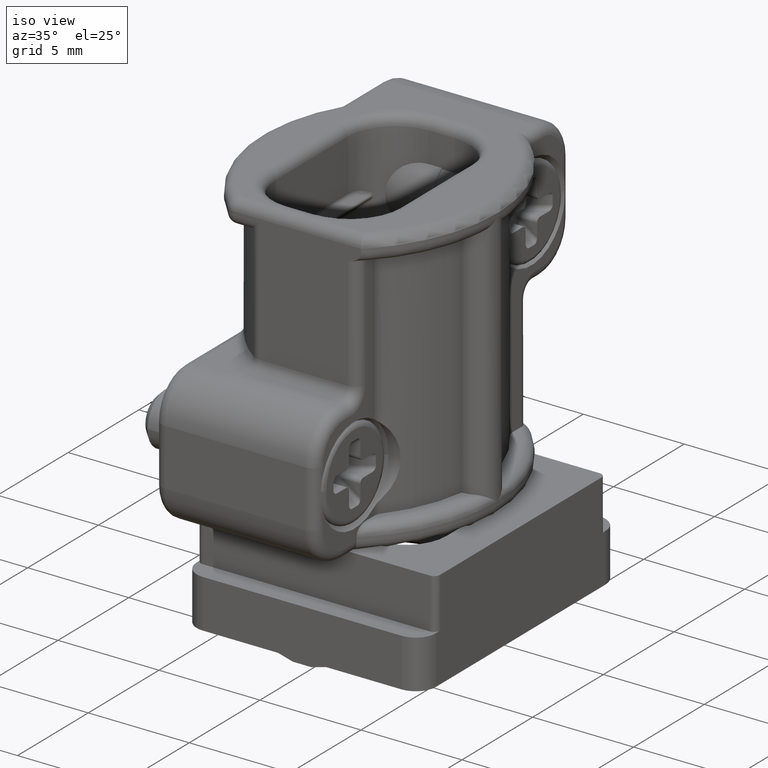
[diagram: clean part render]
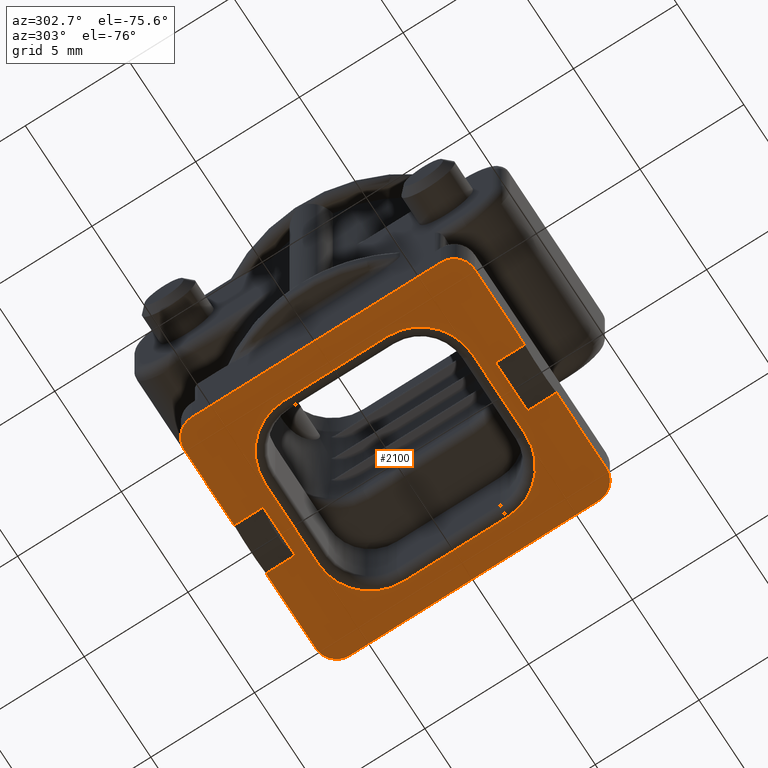
[diagram: tour spotlight — one face highlighted and labeled with its STEP entity id]
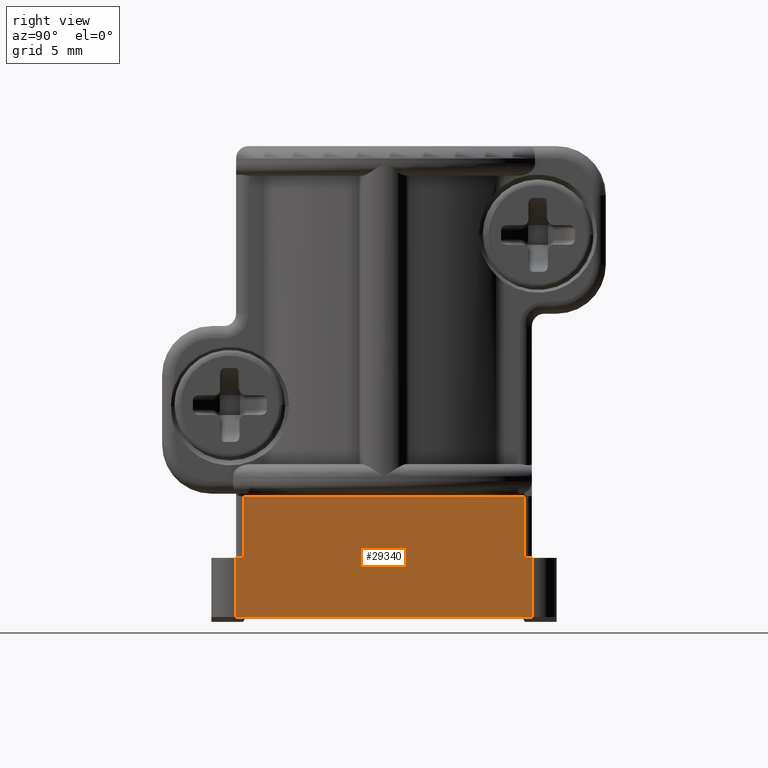
[diagram: tour spotlight — one face highlighted and labeled with its STEP entity id]
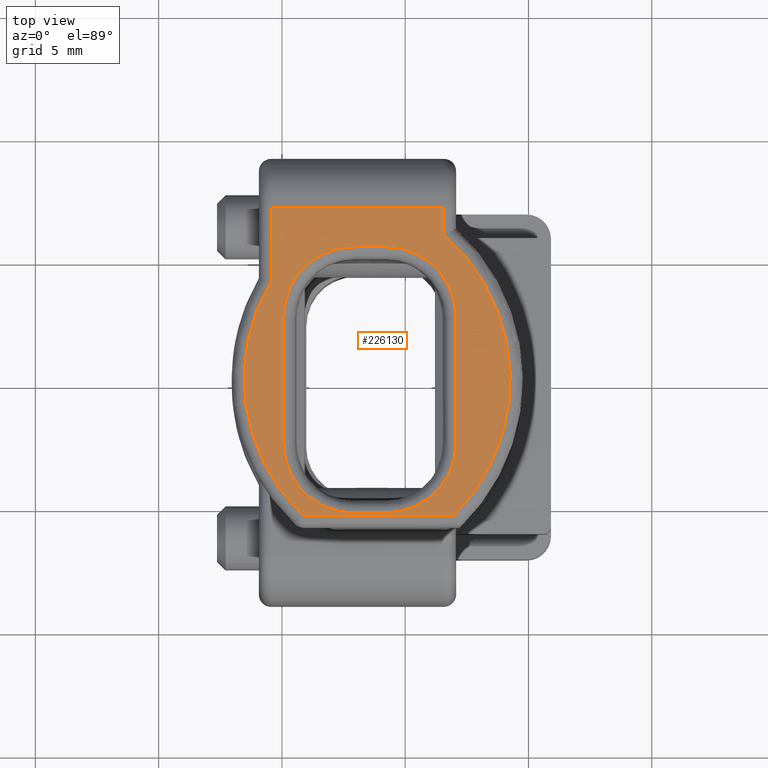
[diagram: tour spotlight — one face highlighted and labeled with its STEP entity id]
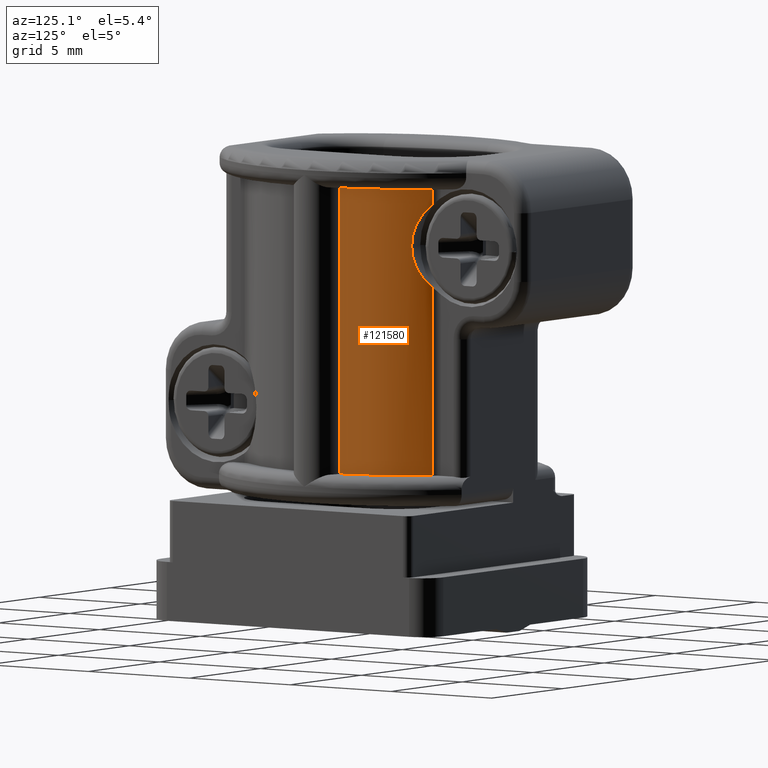
[diagram: tour spotlight — one face highlighted and labeled with its STEP entity id]
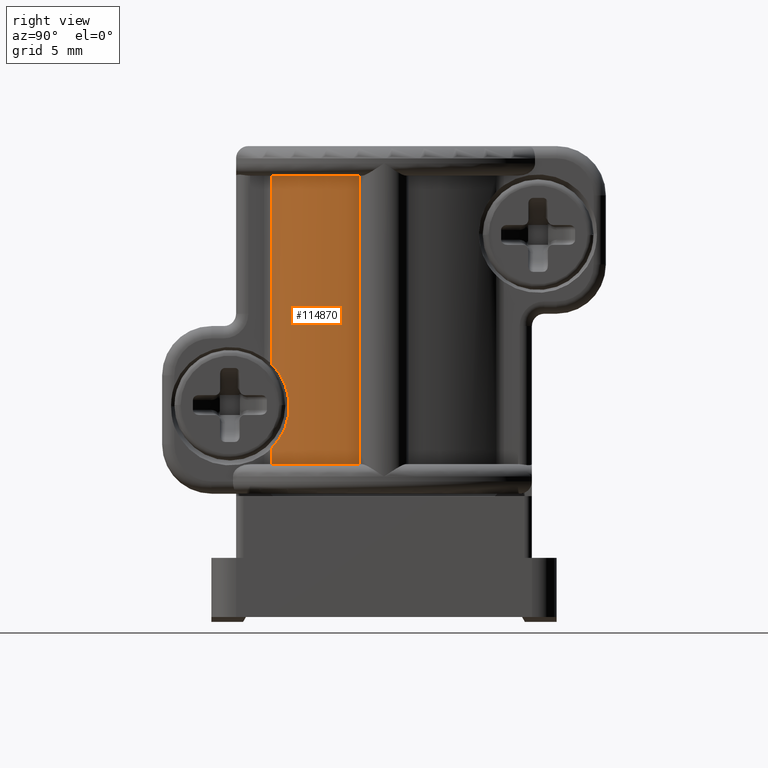
[diagram: tour spotlight — one face highlighted and labeled with its STEP entity id]
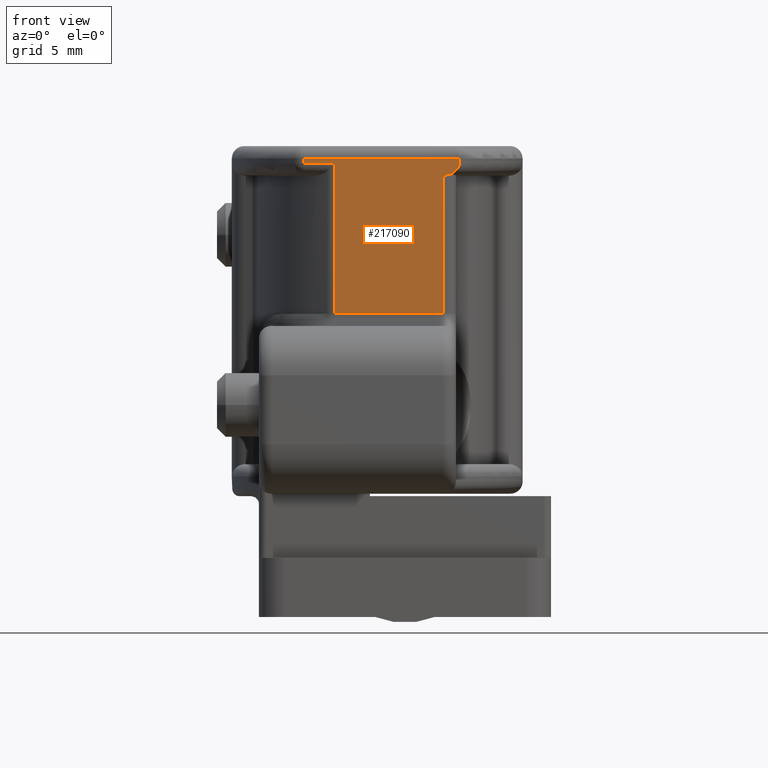
[diagram: tour spotlight — one face highlighted and labeled with its STEP entity id]
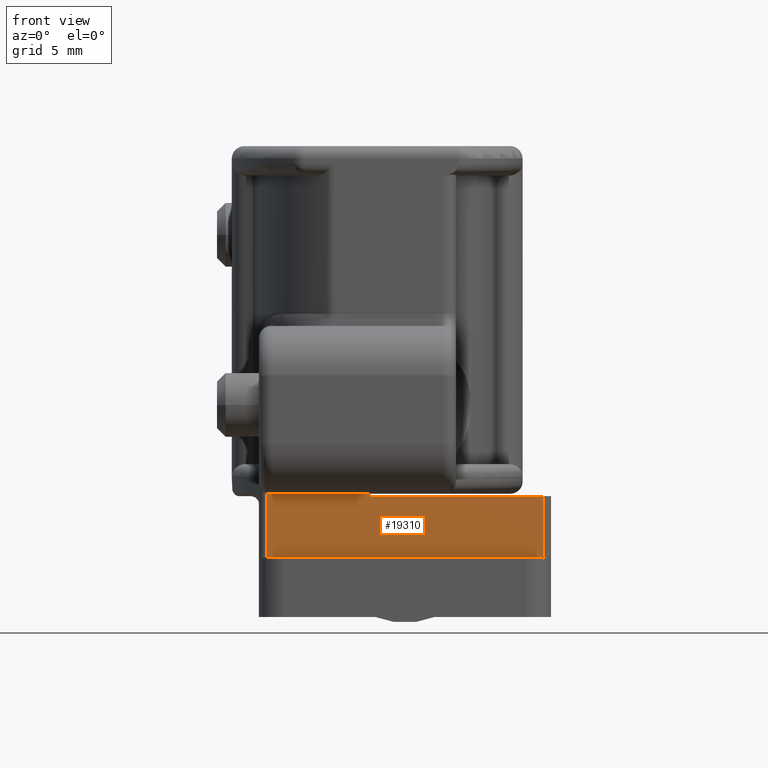
[diagram: tour spotlight — one face highlighted and labeled with its STEP entity id]
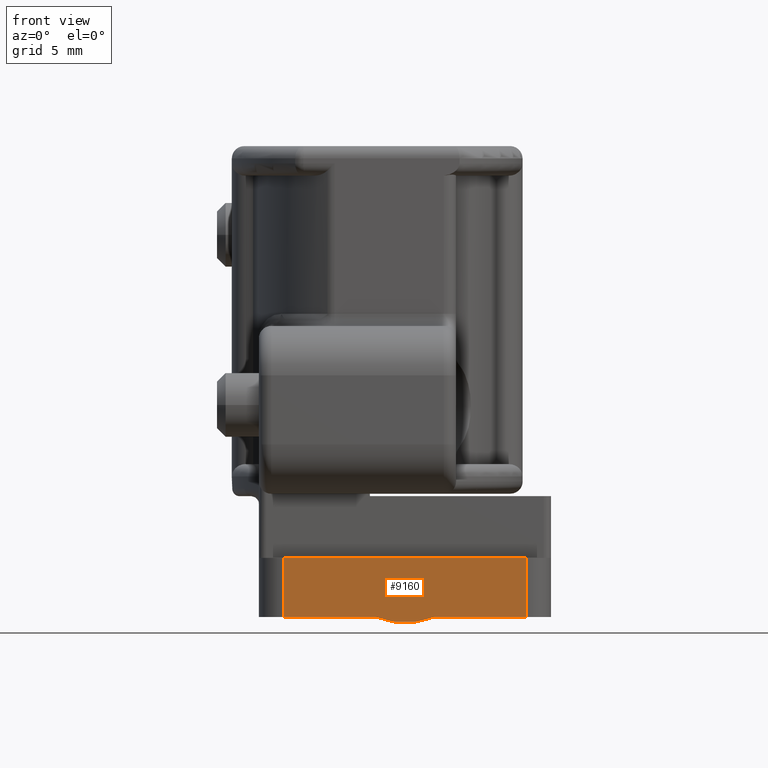
[diagram: tour spotlight — one face highlighted and labeled with its STEP entity id]
A machine part: a face-by-face anatomy tour. The part has 422 B-rep faces; the first image is the clean iso view, then the 8 largest visible faces are spotlighted one at a time (largest first), each with its STEP entity span.

Face 1 — auxiliary view, entity #2100. In plain terms, the highlighted planar face has unit normal (0, 0, -1).
Definition (entity closure, byte-faithful):
#10=CARTESIAN_POINT('',(25.2244043245935,-36.2461187952982,
14.0822510026395));
#20=DIRECTION('',(0.,-0.,1.));
#30=DIRECTION('',(0.,1.,0.));
#40=AXIS2_PLACEMENT_3D('',#10,#20,#30);
#50=PLANE('',#40);
#60=CARTESIAN_POINT('',(22.724404350069,-43.3661187952982,
14.0822510026395));
#70=DIRECTION('',(0.,0.,-1.));
#80=DIRECTION('',(-1.,0.,0.));
#90=AXIS2_PLACEMENT_3D('',#60,#70,#80);
#100=CIRCLE('',#90,2.5);
#110=CARTESIAN_POINT('',(22.724404350069,-45.8661187952982,
14.0822510026395));
#120=VERTEX_POINT('',#110);
#130=CARTESIAN_POINT('',(20.224404350069,-43.3661187952982,
14.0822510026395));
#140=VERTEX_POINT('',#130);
#150=EDGE_CURVE('',#120,#140,#100,.T.);
#160=ORIENTED_EDGE('',*,*,#150,.T.);
#170=CARTESIAN_POINT('',(0.,-45.8661187952982,14.0822510026395));
#180=DIRECTION('',(1.,0.,0.));
#190=VECTOR('',#180,1.);
#200=LINE('',#170,#190);
#210=CARTESIAN_POINT('',(27.7244043500691,-45.8661187952982,
14.0822510026395));
#220=VERTEX_POINT('',#210);
#230=EDGE_CURVE('',#120,#220,#200,.T.);
#240=ORIENTED_EDGE('',*,*,#230,.F.);
#250=CARTESIAN_POINT('',(27.7244043500691,-43.3661187952982,
14.0822510026395));
#260=DIRECTION('',(0.,0.,-1.));
#270=DIRECTION('',(-1.,0.,0.));
#280=AXIS2_PLACEMENT_3D('',#250,#260,#270);
#290=CIRCLE('',#280,2.5);
#300=CARTESIAN_POINT('',(30.2244043500691,-43.3661187952982,
14.0822510026395));
#310=VERTEX_POINT('',#300);
#320=EDGE_CURVE('',#310,#220,#290,.T.);
#330=ORIENTED_EDGE('',*,*,#320,.T.);
#340=CARTESIAN_POINT('',(30.2244043500691,0.,14.0822510026395));
#350=DIRECTION('',(0.,1.,0.));
#360=VECTOR('',#350,1.);
#370=LINE('',#340,#360);
#380=CARTESIAN_POINT('',(30.2244043500691,-39.3661187952982,
14.0822510026395));
#390=VERTEX_POINT('',#380);
#400=EDGE_CURVE('',#310,#390,#370,.T.);
#410=ORIENTED_EDGE('',*,*,#400,.F.);
#420=CARTESIAN_POINT('',(27.7244043500691,-39.3661187952982,
14.0822510026395));
#430=DIRECTION('',(0.,0.,-1.));
#440=DIRECTION('',(-1.,0.,0.));
#450=AXIS2_PLACEMENT_3D('',#420,#430,#440);
#460=CIRCLE('',#450,2.5);
#470=CARTESIAN_POINT('',(27.7244043500691,-36.8661187952982,
14.0822510026395));
#480=VERTEX_POINT('',#470);
#490=EDGE_CURVE('',#480,#390,#460,.T.);
#500=ORIENTED_EDGE('',*,*,#490,.T.);
#510=CARTESIAN_POINT('',(0.,-36.8661187952982,14.0822510026395));
#520=DIRECTION('',(-1.,0.,0.));
#530=VECTOR('',#520,1.);
#540=LINE('',#510,#530);
#550=CARTESIAN_POINT('',(22.724404350069,-36.8661187952982,
14.0822510026395));
#560=VERTEX_POINT('',#550);
#570=EDGE_CURVE('',#480,#560,#540,.T.);
#580=ORIENTED_EDGE('',*,*,#570,.F.);
#590=CARTESIAN_POINT('',(22.724404350069,-39.3661187952982,
14.0822510026395));
#600=DIRECTION('',(0.,0.,-1.));
#610=DIRECTION('',(-1.,0.,0.));
#620=AXIS2_PLACEMENT_3D('',#590,#600,#610);
#630=CIRCLE('',#620,2.5);
#640=CARTESIAN_POINT('',(20.224404350069,-39.3661187952982,
14.0822510026395));
#650=VERTEX_POINT('',#640);
#660=EDGE_CURVE('',#650,#560,#630,.T.);
#670=ORIENTED_EDGE('',*,*,#660,.T.);
#680=CARTESIAN_POINT('',(20.224404350069,0.,14.0822510026395));
#690=DIRECTION('',(0.,-1.,0.));
#700=VECTOR('',#690,1.);
#710=LINE('',#680,#700);
#720=EDGE_CURVE('',#650,#140,#710,.T.);
#730=ORIENTED_EDGE('',*,*,#720,.F.);
#740=EDGE_LOOP('',(#730,#670,#580,#500,#410,#330,#240,#160));
#750=FACE_BOUND('',#740,.T.);
#760=CARTESIAN_POINT('',(31.224404324593,-46.2911187952982,
14.0822510026395));
#770=DIRECTION('',(0.,0.,-1.));
#780=DIRECTION('',(-1.,0.,0.));
#790=AXIS2_PLACEMENT_3D('',#760,#770,#780);
#800=CIRCLE('',#790,1.);
#810=CARTESIAN_POINT('',(32.2244043245931,-46.2911187952982,
14.0822510026395));
#820=VERTEX_POINT('',#810);
#830=CARTESIAN_POINT('',(31.224404324593,-47.2911187952982,
14.0822510026395));
#840=VERTEX_POINT('',#830);
#850=EDGE_CURVE('',#820,#840,#800,.T.);
#860=ORIENTED_EDGE('',*,*,#850,.F.);
#870=CARTESIAN_POINT('',(0.,-47.2911187952982,14.0822510026395));
#880=DIRECTION('',(1.,0.,0.));
#890=VECTOR('',#880,1.);
#900=LINE('',#870,#890);
#910=CARTESIAN_POINT('',(19.2244043245934,-47.2911187952982,
14.0822510026395));
#920=VERTEX_POINT('',#910);
#930=EDGE_CURVE('',#920,#840,#900,.T.);
#940=ORIENTED_EDGE('',*,*,#930,.T.);
#950=CARTESIAN_POINT('',(19.2244043245934,-46.2911187952982,
14.0822510026395));
#960=DIRECTION('',(0.,0.,1.));
#970=DIRECTION('',(1.,0.,0.));
#980=AXIS2_PLACEMENT_3D('',#950,#960,#970);
#990=CIRCLE('',#980,1.);
#1000=CARTESIAN_POINT('',(18.2244043245934,-46.2911187952982,
14.0822510026395));
#1010=VERTEX_POINT('',#1000);
#1020=EDGE_CURVE('',#1010,#920,#990,.T.);
#1030=ORIENTED_EDGE('',*,*,#1020,.T.);
#1040=CARTESIAN_POINT('',(18.2244043245912,0.,14.0822510026395));
#1050=DIRECTION('',(-4.63622137653542E-14,1.,0.));
#1060=VECTOR('',#1050,1.);
#1070=LINE('',#1040,#1060);
#1080=CARTESIAN_POINT('',(18.2244043245932,-42.5661187952981,
14.0822510026395));
#1090=VERTEX_POINT('',#1080);
#1100=EDGE_CURVE('',#1010,#1090,#1070,.T.);
#1110=ORIENTED_EDGE('',*,*,#1100,.F.);
#1120=CARTESIAN_POINT('',(18.9744043245932,-42.5661187952981,
14.0822510026395));
#1130=DIRECTION('',(-1.,0.,0.));
#1140=VECTOR('',#1130,1.);
#1150=LINE('',#1120,#1140);
#1160=CARTESIAN_POINT('',(19.6244043245932,-42.5661187952981,
14.0822510026395));
#1170=VERTEX_POINT('',#1160);
#1180=EDGE_CURVE('',#1170,#1090,#1150,.T.);
#1190=ORIENTED_EDGE('',*,*,#1180,.T.);
#1200=CARTESIAN_POINT('',(19.6244043245932,-41.3661187952981,
14.0822510026395));
#1210=DIRECTION('',(0.,-1.,0.));
#1220=VECTOR('',#1210,1.);
#1230=LINE('',#1200,#1220);
#1240=CARTESIAN_POINT('',(19.6244043245932,-40.1661187952981,
14.0822510026395));
#1250=VERTEX_POINT('',#1240);
#1260=EDGE_CURVE('',#1250,#1170,#1230,.T.);
#1270=ORIENTED_EDGE('',*,*,#1260,.T.);
#1280=CARTESIAN_POINT('',(18.9744043245932,-40.1661187952981,
14.0822510026395));
#1290=DIRECTION('',(1.,0.,0.));
#1300=VECTOR('',#1290,1.);
#1310=LINE('',#1280,#1300);
#1320=CARTESIAN_POINT('',(18.2244043245931,-40.1661187952981,
14.0822510026395));
#1330=VERTEX_POINT('',#1320);
#1340=EDGE_CURVE('',#1330,#1250,#1310,.T.);
#1350=ORIENTED_EDGE('',*,*,#1340,.T.);
#1360=CARTESIAN_POINT('',(18.2244043245912,0.,14.0822510026395));
#1370=DIRECTION('',(-4.63622137653542E-14,1.,0.));
#1380=VECTOR('',#1370,1.);
#1390=LINE('',#1360,#1380);
#1400=CARTESIAN_POINT('',(18.2244043245929,-36.4411187952982,
14.0822510026395));
#1410=VERTEX_POINT('',#1400);
#1420=EDGE_CURVE('',#1330,#1410,#1390,.T.);
#1430=ORIENTED_EDGE('',*,*,#1420,.F.);
#1440=CARTESIAN_POINT('',(19.2244043245929,-36.4411187952982,
14.0822510026395));
#1450=DIRECTION('',(0.,0.,-1.));
#1460=DIRECTION('',(-1.,0.,0.));
#1470=AXIS2_PLACEMENT_3D('',#1440,#1450,#1460);
#1480=CIRCLE('',#1470,1.);
#1490=CARTESIAN_POINT('',(19.2244043245929,-35.4411187952982,
14.0822510026395));
#1500=VERTEX_POINT('',#1490);
#1510=EDGE_CURVE('',#1410,#1500,#1480,.T.);
#1520=ORIENTED_EDGE('',*,*,#1510,.F.);
#1530=CARTESIAN_POINT('',(0.,-35.4411187952982,14.0822510026395));
#1540=DIRECTION('',(-1.,0.,0.));
#1550=VECTOR('',#1540,1.);
#1560=LINE('',#1530,#1550);
#1570=CARTESIAN_POINT('',(31.2244043245934,-35.4411187952982,
14.0822510026395));
#1580=VERTEX_POINT('',#1570);
#1590=EDGE_CURVE('',#1580,#1500,#1560,.T.);
#1600=ORIENTED_EDGE('',*,*,#1590,.T.);
#1610=CARTESIAN_POINT('',(31.2244043245934,-36.4411187952982,
14.0822510026395));
#1620=DIRECTION('',(0.,0.,1.));
#1630=DIRECTION('',(1.,0.,0.));
#1640=AXIS2_PLACEMENT_3D('',#1610,#1620,#1630);
#1650=CIRCLE('',#1640,1.);
#1660=CARTESIAN_POINT('',(32.2244043245934,-36.4411187952982,
14.0822510026395));
#1670=VERTEX_POINT('',#1660);
#1680=EDGE_CURVE('',#1670,#1580,#1650,.T.);
#1690=ORIENTED_EDGE('',*,*,#1680,.T.);
#1700=CARTESIAN_POINT('',(32.2244043245947,0.,14.0822510026395));
#1710=DIRECTION('',(-3.47716603240185E-14,-1.,0.));
#1720=VECTOR('',#1710,1.);
#1730=LINE('',#1700,#1720);
#1740=CARTESIAN_POINT('',(32.2244043245933,-40.1661187952981,
14.0822510026395));
#1750=VERTEX_POINT('',#1740);
#1760=EDGE_CURVE('',#1670,#1750,#1730,.T.);
#1770=ORIENTED_EDGE('',*,*,#1760,.F.);
#1780=CARTESIAN_POINT('',(31.4744043245932,-40.1661187952981,
14.0822510026395));
#1790=DIRECTION('',(1.,0.,0.));
#1800=VECTOR('',#1790,1.);
#1810=LINE('',#1780,#1800);
#1820=CARTESIAN_POINT('',(30.8244043245932,-40.1661187952981,
14.0822510026395));
#1830=VERTEX_POINT('',#1820);
#1840=EDGE_CURVE('',#1830,#1750,#1810,.T.);
#1850=ORIENTED_EDGE('',*,*,#1840,.T.);
#1860=CARTESIAN_POINT('',(30.8244043245932,-41.3661187952981,
14.0822510026395));
#1870=DIRECTION('',(0.,1.,0.));
#1880=VECTOR('',#1870,1.);
#1890=LINE('',#1860,#1880);
#1900=CARTESIAN_POINT('',(30.8244043245932,-42.5661187952981,
14.0822510026395));
#1910=VERTEX_POINT('',#1900);
#1920=EDGE_CURVE('',#1910,#1830,#1890,.T.);
#1930=ORIENTED_EDGE('',*,*,#1920,.T.);
#1940=CARTESIAN_POINT('',(31.4744043245932,-42.5661187952981,
14.0822510026395));
#1950=DIRECTION('',(-1.,0.,0.));
#1960=VECTOR('',#1950,1.);
#1970=LINE('',#1940,#1960);
#1980=CARTESIAN_POINT('',(32.2244043245932,-42.5661187952981,
14.0822510026395));
#1990=VERTEX_POINT('',#1980);
#2000=EDGE_CURVE('',#1990,#1910,#1970,.T.);
#2010=ORIENTED_EDGE('',*,*,#2000,.T.);
#2020=CARTESIAN_POINT('',(32.2244043245947,0.,14.0822510026395));
#2030=DIRECTION('',(-3.47716603240185E-14,-1.,0.));
#2040=VECTOR('',#2030,1.);
#2050=LINE('',#2020,#2040);
#2060=EDGE_CURVE('',#1990,#820,#2050,.T.);
#2070=ORIENTED_EDGE('',*,*,#2060,.F.);
#2080=EDGE_LOOP('',(#2070,#2010,#1930,#1850,#1770,#1690,#1600,#1520,
#1430,#1350,#1270,#1190,#1110,#1030,#940,#860));
#2090=FACE_OUTER_BOUND('',#2080,.T.);
#2100=ADVANCED_FACE('',(#750,#2090),#50,.T.);

Face 2 — right view, entity #29340. In plain terms, the highlighted planar face has unit normal (1, 0, 0).
Definition (entity closure, byte-faithful):
#1490=CARTESIAN_POINT('',(19.2244043245929,-35.4411187952982,
14.0822510026395));
#1500=VERTEX_POINT('',#1490);
#1530=CARTESIAN_POINT('',(0.,-35.4411187952982,14.0822510026395));
#1540=DIRECTION('',(-1.,0.,0.));
#1550=VECTOR('',#1540,1.);
#1560=LINE('',#1530,#1550);
#1570=CARTESIAN_POINT('',(31.2244043245934,-35.4411187952982,
14.0822510026395));
#1580=VERTEX_POINT('',#1570);
#1590=EDGE_CURVE('',#1580,#1500,#1560,.T.);
#6610=CARTESIAN_POINT('',(31.2244043245934,-35.4411187952982,
11.6822510026395));
#6620=VERTEX_POINT('',#6610);
#6650=CARTESIAN_POINT('',(0.,-35.4411187952982,11.6822510026395));
#6660=DIRECTION('',(-1.,0.,0.));
#6670=VECTOR('',#6660,1.);
#6680=LINE('',#6650,#6670);
#6690=CARTESIAN_POINT('',(30.9244041630797,-35.441118795298,
11.6822510026395));
#6700=VERTEX_POINT('',#6690);
#6710=EDGE_CURVE('',#6620,#6700,#6680,.T.);
#7490=CARTESIAN_POINT('',(19.5244043500691,-35.4411187952982,
11.6822510026395));
#7500=VERTEX_POINT('',#7490);
#7530=CARTESIAN_POINT('',(0.,-35.4411187952982,11.6822510026395));
#7540=DIRECTION('',(-1.,0.,0.));
#7550=VECTOR('',#7540,1.);
#7560=LINE('',#7530,#7550);
#7570=CARTESIAN_POINT('',(19.2244043245929,-35.4411187952982,
11.6822510026395));
#7580=VERTEX_POINT('',#7570);
#7590=EDGE_CURVE('',#7500,#7580,#7560,.T.);
#14940=CARTESIAN_POINT('',(19.2244043245929,-35.4411187952982,0.));
#14950=DIRECTION('',(0.,0.,1.));
#14960=VECTOR('',#14950,1.);
#14970=LINE('',#14940,#14960);
#14980=EDGE_CURVE('',#7580,#1500,#14970,.T.);
#20180=CARTESIAN_POINT('',(19.5244043500691,-35.4411187952982,
9.1822510026395));
#20190=VERTEX_POINT('',#20180);
#20220=CARTESIAN_POINT('',(19.5244043500691,-35.4411187952982,
9.1322410026395));
#20230=DIRECTION('',(0.,0.,1.));
#20240=VECTOR('',#20230,1.);
#20250=LINE('',#20220,#20240);
#20260=EDGE_CURVE('',#20190,#7500,#20250,.T.);
#20410=CARTESIAN_POINT('',(31.2244043245934,-35.4411187952982,0.));
#20420=DIRECTION('',(0.,0.,-1.));
#20430=VECTOR('',#20420,1.);
#20440=LINE('',#20410,#20430);
#20450=EDGE_CURVE('',#1580,#6620,#20440,.T.);
#20560=CARTESIAN_POINT('',(30.9244041630797,-35.4411187952984,
11.6822610026395));
#20570=DIRECTION('',(0.,0.,-1.));
#20580=VECTOR('',#20570,1.);
#20590=LINE('',#20560,#20580);
#20600=CARTESIAN_POINT('',(30.9244041630797,-35.4411187952984,
9.1822510026395));
#20610=VERTEX_POINT('',#20600);
#20620=EDGE_CURVE('',#6700,#20610,#20590,.T.);
#29140=CARTESIAN_POINT('',(14.5244043245912,-35.4411187952982,
9.1322510026395));
#29150=DIRECTION('',(0.,1.,-0.));
#29160=DIRECTION('',(-1.,0.,0.));
#29170=AXIS2_PLACEMENT_3D('',#29140,#29150,#29160);
#29180=PLANE('',#29170);
#29190=ORIENTED_EDGE('',*,*,#1590,.F.);
#29200=ORIENTED_EDGE('',*,*,#14980,.T.);
#29210=ORIENTED_EDGE('',*,*,#7590,.T.);
#29220=ORIENTED_EDGE('',*,*,#20260,.T.);
#29230=CARTESIAN_POINT('',(0.,-35.4411187952982,9.1822510026395));
#29240=DIRECTION('',(-1.,0.,0.));
#29250=VECTOR('',#29240,1.);
#29260=LINE('',#29230,#29250);
#29270=EDGE_CURVE('',#20610,#20190,#29260,.T.);
#29280=ORIENTED_EDGE('',*,*,#29270,.T.);
#29290=ORIENTED_EDGE('',*,*,#20620,.T.);
#29300=ORIENTED_EDGE('',*,*,#6710,.T.);
#29310=ORIENTED_EDGE('',*,*,#20450,.T.);
#29320=EDGE_LOOP('',(#29310,#29300,#29290,#29280,#29220,#29210,#29200,
#29190));
#29330=FACE_OUTER_BOUND('',#29320,.T.);
#29340=ADVANCED_FACE('',(#29330),#29180,.T.);

Face 3 — top view, entity #226130. In plain terms, the highlighted planar face has unit normal (0, 0, -1).
Definition (entity closure, byte-faithful):
#7840=CARTESIAN_POINT('',(0.,-46.7911187952982,-5.0177489973605));
#7850=DIRECTION('',(1.,0.,0.));
#7860=VECTOR('',#7850,1.);
#7870=LINE('',#7840,#7860);
#7880=CARTESIAN_POINT('',(29.2126780835721,-46.7911187952982,
-5.0177489973605));
#7890=VERTEX_POINT('',#7880);
#7900=CARTESIAN_POINT('',(32.2244043245911,-46.7911187952982,
-5.0177489973605));
#7910=VERTEX_POINT('',#7900);
#7920=EDGE_CURVE('',#7890,#7910,#7870,.T.);
#32270=CARTESIAN_POINT('',(22.674404350069,-39.2911187952982,
-5.0177489973605));
#32280=VERTEX_POINT('',#32270);
#32310=CARTESIAN_POINT('',(22.674404350069,-42.1411187952982,
-5.0177489973605));
#32320=DIRECTION('',(0.,0.,1.));
#32330=DIRECTION('',(1.,0.,0.));
#32340=AXIS2_PLACEMENT_3D('',#32310,#32320,#32330);
#32350=CIRCLE('',#32340,2.85);
#32360=CARTESIAN_POINT('',(19.824404350069,-42.1411187952982,
-5.0177489973605));
#32370=VERTEX_POINT('',#32360);
#32380=EDGE_CURVE('',#32280,#32370,#32350,.T.);
#37920=CARTESIAN_POINT('',(30.6244043500691,-42.1411187952982,
-5.0177489973605));
#37930=VERTEX_POINT('',#37920);
#38110=CARTESIAN_POINT('',(30.6244043500691,-43.4411187952982,
-5.0177489973605));
#38120=VERTEX_POINT('',#38110);
#38150=CARTESIAN_POINT('',(30.6244043500691,-14.7,-5.0177489973605));
#38160=DIRECTION('',(0.,1.,0.));
#38170=VECTOR('',#38160,1.);
#38180=LINE('',#38150,#38170);
#38190=EDGE_CURVE('',#38120,#37930,#38180,.T.);
#68030=CARTESIAN_POINT('',(19.7244043500691,-45.4831800430109,
-5.0177489973605));
#68040=VERTEX_POINT('',#68030);
#69740=CARTESIAN_POINT('',(25.2744043500691,-40.2911187952982,
-5.0177489973605));
#69750=DIRECTION('',(0.,0.,-1.));
#69760=DIRECTION('',(-1.,0.,0.));
#69770=AXIS2_PLACEMENT_3D('',#69740,#69750,#69760);
#69780=CIRCLE('',#69770,7.6);
#69790=EDGE_CURVE('',#7890,#68040,#69780,.T.);
#70740=CARTESIAN_POINT('',(27.7744043500691,-46.2911187952982,
-5.0177489973605));
#70750=VERTEX_POINT('',#70740);
#70840=CARTESIAN_POINT('',(22.674404350069,-46.2911187952982,
-5.0177489973605));
#70850=VERTEX_POINT('',#70840);
#70880=CARTESIAN_POINT('',(0.,-46.2911187952982,-5.0177489973605));
#70890=DIRECTION('',(-1.,0.,0.));
#70900=VECTOR('',#70890,1.);
#70910=LINE('',#70880,#70900);
#70920=EDGE_CURVE('',#70750,#70850,#70910,.T.);
#73110=CARTESIAN_POINT('',(27.7744043500691,-43.4411187952982,
-5.0177489973605));
#73120=DIRECTION('',(0.,0.,-1.));
#73130=DIRECTION('',(-1.,0.,0.));
#73140=AXIS2_PLACEMENT_3D('',#73110,#73120,#73130);
#73150=CIRCLE('',#73140,2.85);
#73160=EDGE_CURVE('',#38120,#70750,#73150,.T.);
#73330=CARTESIAN_POINT('',(19.824404350069,-43.4411187952982,
-5.0177489973605));
#73340=VERTEX_POINT('',#73330);
#73370=CARTESIAN_POINT('',(22.674404350069,-43.4411187952982,
-5.0177489973605));
#73380=DIRECTION('',(0.,0.,-1.));
#73390=DIRECTION('',(-1.,0.,0.));
#73400=AXIS2_PLACEMENT_3D('',#73370,#73380,#73390);
#73410=CIRCLE('',#73400,2.85);
#73420=EDGE_CURVE('',#70850,#73340,#73410,.T.);
#73970=CARTESIAN_POINT('',(27.7744043500691,-42.1411187952982,
-5.0177489973605));
#73980=DIRECTION('',(0.,0.,1.));
#73990=DIRECTION('',(1.,0.,0.));
#74000=AXIS2_PLACEMENT_3D('',#73970,#73980,#73990);
#74010=CIRCLE('',#74000,2.85);
#74020=CARTESIAN_POINT('',(27.7744043500691,-39.2911187952982,
-5.0177489973605));
#74030=VERTEX_POINT('',#74020);
#74040=EDGE_CURVE('',#37930,#74030,#74010,.T.);
#163360=CARTESIAN_POINT('',(0.,-39.2911187952982,-5.0177489973605));
#163370=DIRECTION('',(-1.,0.,0.));
#163380=VECTOR('',#163370,1.);
#163390=LINE('',#163360,#163380);
#163400=EDGE_CURVE('',#74030,#32280,#163390,.T.);
#163530=CARTESIAN_POINT('',(19.824404350069,-14.7,-5.0177489973605));
#163540=DIRECTION('',(0.,-1.,0.));
#163550=VECTOR('',#163540,1.);
#163560=LINE('',#163530,#163550);
#163570=EDGE_CURVE('',#32370,#73340,#163560,.T.);
#225000=CARTESIAN_POINT('',(19.724404350069,-14.7,-5.0177489973605));
#225010=DIRECTION('',(2.24855296126614E-16,-1.,0.));
#225020=VECTOR('',#225010,1.);
#225030=LINE('',#225000,#225020);
#225040=CARTESIAN_POINT('',(19.7244043500691,-39.3602960716883,
-5.0177489973605));
#225050=VERTEX_POINT('',#225040);
#225060=EDGE_CURVE('',#225050,#68040,#225030,.T.);
#225700=CARTESIAN_POINT('',(25.2761992565744,-49.1411187952983,
-5.0177489973605));
#225710=DIRECTION('',(-0.,0.,1.));
#225720=DIRECTION('',(0.,-1.,0.));
#225730=AXIS2_PLACEMENT_3D('',#225700,#225710,#225720);
#225740=PLANE('',#225730);
#225750=CARTESIAN_POINT('',(0.,-39.7911191785686,-5.0177489973605));
#225760=DIRECTION('',(1.,0.,0.));
#225770=VECTOR('',#225760,1.);
#225780=LINE('',#225750,#225770);
#225790=CARTESIAN_POINT('',(31.1260993531472,-39.7911191785686,
-5.0177489973605));
#225800=VERTEX_POINT('',#225790);
#225810=CARTESIAN_POINT('',(32.2244043245911,-39.7911191785686,
-5.0177489973605));
#225820=VERTEX_POINT('',#225810);
#225830=EDGE_CURVE('',#225800,#225820,#225780,.T.);
#225840=ORIENTED_EDGE('',*,*,#225830,.T.);
#225850=CARTESIAN_POINT('',(25.2244043500691,-44.8911187952982,
-5.0177489973605));
#225860=DIRECTION('',(0.,0.,1.));
#225870=DIRECTION('',(1.,0.,0.));
#225880=AXIS2_PLACEMENT_3D('',#225850,#225860,#225870);
#225890=CIRCLE('',#225880,7.8);
#225900=EDGE_CURVE('',#225800,#225050,#225890,.T.);
#225910=ORIENTED_EDGE('',*,*,#225900,.F.);
#225920=ORIENTED_EDGE('',*,*,#225060,.F.);
#225930=ORIENTED_EDGE('',*,*,#69790,.T.);
#225940=ORIENTED_EDGE('',*,*,#7920,.F.);
#225950=CARTESIAN_POINT('',(32.2244043245911,-14.7,-5.0177489973605));
#225960=DIRECTION('',(0.,1.,0.));
#225970=VECTOR('',#225960,1.);
#225980=LINE('',#225950,#225970);
#225990=EDGE_CURVE('',#7910,#225820,#225980,.T.);
#226000=ORIENTED_EDGE('',*,*,#225990,.F.);
#226010=EDGE_LOOP('',(#226000,#225940,#225930,#225920,#225910,#225840));
#226020=FACE_OUTER_BOUND('',#226010,.T.);
#226030=ORIENTED_EDGE('',*,*,#73160,.F.);
#226040=ORIENTED_EDGE('',*,*,#70920,.F.);
#226050=ORIENTED_EDGE('',*,*,#73420,.F.);
#226060=ORIENTED_EDGE('',*,*,#163570,.T.);
#226070=ORIENTED_EDGE('',*,*,#32380,.T.);
#226080=ORIENTED_EDGE('',*,*,#163400,.T.);
#226090=ORIENTED_EDGE('',*,*,#74040,.T.);
#226100=ORIENTED_EDGE('',*,*,#38190,.T.);
#226110=EDGE_LOOP('',(#226100,#226090,#226080,#226070,#226060,#226050,
#226040,#226030));
#226120=FACE_BOUND('',#226110,.T.);
#226130=ADVANCED_FACE('',(#226020,#226120),#225740,.F.);

Face 4 — auxiliary view, entity #121580. In plain terms, the highlighted cylindrical surface (partial cylindrical patch) has radius 7.3 mm, axis along (0, 0, 1).
Definition (entity closure, byte-faithful):
#113300=CARTESIAN_POINT('',(25.2244043500691,-44.8911187952982,
-3.66774899736046));
#113310=DIRECTION('',(0.,0.,-1.));
#113320=DIRECTION('',(-1.,0.,0.));
#113330=AXIS2_PLACEMENT_3D('',#113300,#113310,#113320);
#113340=CYLINDRICAL_SURFACE('',#113330,7.30000000000001);
#114530=CARTESIAN_POINT('',(25.2244043500691,-44.8911187952982,
-3.81774899736046));
#114540=DIRECTION('',(0.,0.,-1.));
#114550=DIRECTION('',(-1.,0.,0.));
#114560=AXIS2_PLACEMENT_3D('',#114530,#114540,#114550);
#114570=CIRCLE('',#114560,7.30000000000001);
#114700=CARTESIAN_POINT('',(25.2244043500691,-44.8911187952982,
7.88225100263959));
#114710=DIRECTION('',(0.,0.,-1.));
#114720=DIRECTION('',(-1.,0.,0.));
#114730=AXIS2_PLACEMENT_3D('',#114700,#114710,#114720);
#114740=CIRCLE('',#114730,7.30000000000001);
#120160=CARTESIAN_POINT('',(31.4744043245911,-38.4475080283935,
-1.46774899736045));
#120170=DIRECTION('',(0.,1.,0.));
#120180=DIRECTION('',(1.,0.,0.));
#120190=AXIS2_PLACEMENT_3D('',#120160,#120170,#120180);
#120200=CYLINDRICAL_SURFACE('',#120190,2.4);
#120210=CARTESIAN_POINT('',(29.7738676001912,-39.1821447950256,
-3.16131767000624));
#120220=CARTESIAN_POINT('',(29.7486075955289,-39.1620151775316,
-3.13595373509148));
#120230=CARTESIAN_POINT('',(29.7236771963786,-39.1424227032803,
-3.10978488077836));
#120240=CARTESIAN_POINT('',(29.6991598997085,-39.1234015023849,
-3.08283637330122));
#120250=CARTESIAN_POINT('',(29.6746426167776,-39.1043803121487,
-3.05588788092571));
#120260=CARTESIAN_POINT('',(29.6505389815569,-39.085930746702,
-3.02816026792035));
#120270=CARTESIAN_POINT('',(29.6269291641772,-39.0680804765885,
-2.99968748556871));
#120280=CARTESIAN_POINT('',(29.6033193181517,-39.0502301848171,
-2.97121466867098));
#120290=CARTESIAN_POINT('',(29.5802038111922,-39.0329795030998,
-2.94199729103964));
#120300=CARTESIAN_POINT('',(29.5576573412124,-39.0163491389842,
-2.9120761769526));
#120310=CARTESIAN_POINT('',(29.5351108000721,-38.9997187223804,
-2.88215496842947));
#120320=CARTESIAN_POINT('',(29.513133761516,-38.9837088850461,
-2.85153068428994));
#120330=CARTESIAN_POINT('',(29.4917936249553,-38.9683332363792,
-2.82024846640749));
#120340=CARTESIAN_POINT('',(29.4704524299187,-38.9529568250764,
-2.78896469691944));
#120350=CARTESIAN_POINT('',(29.4497524364071,-38.9382175791944,
-2.75702987022615));
#120360=CARTESIAN_POINT('',(29.429741384916,-38.9241144863216,
-2.72447230148077));
#120370=CARTESIAN_POINT('',(29.409718992457,-38.9100034007292,
-2.69189628121415));
#120380=CARTESIAN_POINT('',(29.3903078602322,-38.8964740898779,
-2.65856789020219));
#120390=CARTESIAN_POINT('',(29.3715922116281,-38.8835541605171,
-2.62454682654377));
#120400=CARTESIAN_POINT('',(29.3528766550897,-38.8706342947117,
-2.59052593024117));
#120410=CARTESIAN_POINT('',(29.3348572190094,-38.858324168746,
-2.55581330607092));
#120420=CARTESIAN_POINT('',(29.3176116582048,-38.8466457882756,
-2.52048134426645));
#120430=CARTESIAN_POINT('',(29.300366136255,-38.8349674341171,
-2.48514946206615));
#120440=CARTESIAN_POINT('',(29.2838950679883,-38.8239211318941,
-2.44919929533334));
#120450=CARTESIAN_POINT('',(29.2682667601111,-38.8135224934163,
-2.41271304249149));
#120460=CARTESIAN_POINT('',(29.2526384466295,-38.8031238512095,
-2.37622677656542));
#120470=CARTESIAN_POINT('',(29.237853384769,-38.7933731183284,
-2.33920554602169));
#120480=CARTESIAN_POINT('',(29.2239682484466,-38.7842792998319,
-2.30173788655203));
#120490=CARTESIAN_POINT('',(29.2100830696797,-38.7751854535371,
-2.26427011254984));
#120500=CARTESIAN_POINT('',(29.1970981960266,-38.7667486995718,
-2.22635705291381));
#120510=CARTESIAN_POINT('',(29.185057361079,-38.7589717221735,
-2.18808952840623));
#120520=CARTESIAN_POINT('',(29.1730127877498,-38.7511923302161,
-2.14981012277869));
#120530=CARTESIAN_POINT('',(29.161926626742,-38.7440818743035,
-2.1112286910256));
#120540=CARTESIAN_POINT('',(29.1517906653634,-38.7376127434251,
-2.07228666365499));
#120550=CARTESIAN_POINT('',(29.1416482884732,-38.7311395179391,
-2.03331998810169));
#120560=CARTESIAN_POINT('',(29.1324398018479,-38.725297389213,
-1.99391411822449));
#120570=CARTESIAN_POINT('',(29.1242132379003,-38.7200985685933,
-1.95416636551343));
#120580=CARTESIAN_POINT('',(29.1159867071895,-38.7148997689778,
-1.91441877339034));
#120590=CARTESIAN_POINT('',(29.10874243292,-38.7103444366263,
-1.87433055315129));
#120600=CARTESIAN_POINT('',(29.1025158438143,-38.7064400451852,
-1.834007150528));
#120610=CARTESIAN_POINT('',(29.0962892617357,-38.7025356581505,
-1.79368379341149));
#120620=CARTESIAN_POINT('',(29.0910805893278,-38.6992823145181,
-1.75312656234733));
#120630=CARTESIAN_POINT('',(29.0869110971001,-38.6966824505491,
-1.71244490800534));
#120640=CARTESIAN_POINT('',(29.082741597659,-38.6940825820822,
-1.67176318328221));
#120650=CARTESIAN_POINT('',(29.0796113847401,-38.6921362383037,
-1.63095834958407));
#120660=CARTESIAN_POINT('',(29.0775270752041,-38.690840957568,
-1.59013956632442));
#120670=CARTESIAN_POINT('',(29.0754427558665,-38.6895456707411,
-1.54932059111212));
#120680=CARTESIAN_POINT('',(29.0744043245911,-38.6889014340491,
-1.50848893725936));
#120690=CARTESIAN_POINT('',(29.0744043245911,-38.6889014340491,
-1.46774899736045));
#120700=CARTESIAN_POINT('',(29.0744043245911,-38.6889014340491,
-1.42700905746155));
#120710=CARTESIAN_POINT('',(29.0754427558665,-38.6895456707411,
-1.38617740360878));
#120720=CARTESIAN_POINT('',(29.0775270752041,-38.690840957568,
-1.34535842839649));
#120730=CARTESIAN_POINT('',(29.0796113847401,-38.6921362383037,
-1.30453964513683));
#120740=CARTESIAN_POINT('',(29.082741597659,-38.6940825820822,
-1.2637348114387));
#120750=CARTESIAN_POINT('',(29.0869110971001,-38.6966824505491,
-1.22305308671557));
#120760=CARTESIAN_POINT('',(29.0910805893278,-38.6992823145181,
-1.18237143237358));
#120770=CARTESIAN_POINT('',(29.0962892617357,-38.7025356581505,
-1.14181420130941));
#120780=CARTESIAN_POINT('',(29.1025158438143,-38.7064400451852,
-1.10149084419291));
#120790=CARTESIAN_POINT('',(29.10874243292,-38.7103444366263,
-1.0611674415696));
#120800=CARTESIAN_POINT('',(29.1159867071895,-38.7148997689778,
-1.02107922133058));
#120810=CARTESIAN_POINT('',(29.1242132379003,-38.7200985685933,
-0.981331629207473));
#120820=CARTESIAN_POINT('',(29.1324398018461,-38.7252973892119,
-0.9415838765052));
#120830=CARTESIAN_POINT('',(29.1416482884709,-38.7311395179377,
-0.90217800662786));
#120840=CARTESIAN_POINT('',(29.1517906653634,-38.7376127434251,
-0.863211331065921));
#120850=CARTESIAN_POINT('',(29.1619266267429,-38.7440818743041,
-0.824269303691777));
#120860=CARTESIAN_POINT('',(29.1730127877509,-38.7511923302168,
-0.785687871938781));
#120870=CARTESIAN_POINT('',(29.185057361079,-38.7589717221735,
-0.747408466314672));
#120880=CARTESIAN_POINT('',(29.1970981960246,-38.7667486995705,
-0.709140941813563));
#120890=CARTESIAN_POINT('',(29.2100830696773,-38.7751854535356,
-0.671227882177337));
#120900=CARTESIAN_POINT('',(29.2239682484466,-38.7842792998319,
-0.63376010816888));
#120910=CARTESIAN_POINT('',(29.237853384769,-38.7933731183284,
-0.596292448699234));
#120920=CARTESIAN_POINT('',(29.2526384466295,-38.8031238512095,
-0.559271218155468));
#120930=CARTESIAN_POINT('',(29.2682667601111,-38.8135224934163,
-0.522784952229419));
#120940=CARTESIAN_POINT('',(29.2838950679838,-38.8239211318911,
-0.486298699398061));
#120950=CARTESIAN_POINT('',(29.30036613625,-38.8349674341138,
-0.450348532664949));
#120960=CARTESIAN_POINT('',(29.3176116582048,-38.8466457882756,
-0.415016650454452));
#120970=CARTESIAN_POINT('',(29.3348572190094,-38.8583241687459,
-0.379684688650001));
#120980=CARTESIAN_POINT('',(29.3528766550897,-38.8706342947117,
-0.344972064479718));
#120990=CARTESIAN_POINT('',(29.3715922116281,-38.8835541605171,
-0.310951168177137));
#121000=CARTESIAN_POINT('',(29.3903078602322,-38.8964740898779,
-0.276930104518711));
#121010=CARTESIAN_POINT('',(29.409718992457,-38.9100034007292,
-0.243601713506747));
#121020=CARTESIAN_POINT('',(29.429741384916,-38.9241144863216,
-0.211025693240134));
#121030=CARTESIAN_POINT('',(29.4497524364053,-38.9382175791932,
-0.178468124497659));
#121040=CARTESIAN_POINT('',(29.4704524299168,-38.952956825075,
-0.146533297804245));
#121050=CARTESIAN_POINT('',(29.4917936249553,-38.9683332363792,
-0.115249528313419));
#121060=CARTESIAN_POINT('',(29.5131337615112,-38.9837088850427,
-0.0839673104380382));
#121070=CARTESIAN_POINT('',(29.5351108000671,-38.9997187223767,
-0.0533430262981456));
#121080=CARTESIAN_POINT('',(29.5576573412124,-39.0163491389842,
-0.0234218177683146));
#121090=CARTESIAN_POINT('',(29.5802038111982,-39.0329795031042,
0.00649929632670478));
#121100=CARTESIAN_POINT('',(29.603319318158,-39.0502301848219,
0.0357166739576157));
#121110=CARTESIAN_POINT('',(29.6269291641772,-39.0680804765885,
0.0641894908478));
#121120=CARTESIAN_POINT('',(29.6505389815499,-39.0859307466968,
0.092662273191041));
#121130=CARTESIAN_POINT('',(29.6746426167704,-39.1043803121431,
0.120389886196852));
#121140=CARTESIAN_POINT('',(29.6991598997085,-39.1234015023849,
0.147338378580315));
#121150=CARTESIAN_POINT('',(29.7236771963785,-39.1424227032803,
0.174286886057424));
#121160=CARTESIAN_POINT('',(29.7486075955289,-39.1620151775316,
0.200455740370588));
#121170=CARTESIAN_POINT('',(29.7738676001912,-39.1821447950256,
0.225819675285333));
#121180=B_SPLINE_CURVE_WITH_KNOTS('',3,(#120210,#120220,#120230,#120240,
#120250,#120260,#120270,#120280,#120290,#120300,#120310,#120320,#120330,
#120340,#120350,#120360,#120370,#120380,#120390,#120400,#120410,#120420,
#120430,#120440,#120450,#120460,#120470,#120480,#120490,#120500,#120510,
#120520,#120530,#120540,#120550,#120560,#120570,#120580,#120590,#120600,
#120610,#120620,#120630,#120640,#120650,#120660,#120670,#120680,#120690,
#120700,#120710,#120720,#120730,#120740,#120750,#120760,#120770,#120780,
#120790,#120800,#120810,#120820,#120830,#120840,#120850,#120860,#120870,
#120880,#120890,#120900,#120910,#120920,#120930,#120940,#120950,#120960,
#120970,#120980,#120990,#121000,#121010,#121020,#121030,#121040,#121050,
#121060,#121070,#121080,#121090,#121100,#121110,#121120,#121130,#121140,
#121150,#121160,#121170),.UNSPECIFIED.,.F.,.F.,(4,3,3,3,3,3,3,3,3,3,3,3,
3,3,3,3,3,3,3,3,3,3,3,3,3,3,3,3,3,3,3,3,4),(0.,0.123266166004185,
0.246533443369237,0.36963499449597,0.492433758089753,0.61483718099009,
0.73737476435076,0.860296747792154,0.983383178292688,1.1064168558831,
1.22919634593065,1.35157901072705,1.47415177051015,1.59703412527186,
1.72000016134246,1.84282250374189,1.96528666359424,2.0877508234466,
2.21057316584603,2.33353920191663,2.45642155667835,2.57899431646144,
2.70137698125785,2.8241564713054,2.94719014889581,3.07027657939635,
3.19319856283773,3.3157361461984,3.43813956909874,3.56093833269252,
3.68403988381926,3.80730716118432,3.93057332718852),.UNSPECIFIED.);
#121190=SURFACE_CURVE('',#121180,(#113340,#120200),.CURVE_3D.);
#121200=CARTESIAN_POINT('',(29.7738676001912,-39.1821447950256,
-3.16131767000624));
#121210=VERTEX_POINT('',#121200);
#121220=CARTESIAN_POINT('',(29.7738676001912,-39.1821447950256,
0.225819675285331));
#121230=VERTEX_POINT('',#121220);
#121240=EDGE_CURVE('',#121210,#121230,#121190,.T.);
#121250=ORIENTED_EDGE('',*,*,#121240,.F.);
#121260=CARTESIAN_POINT('',(29.7738676001912,-39.1821447950256,
-3.66774899736046));
#121270=DIRECTION('',(0.,0.,-1.));
#121280=VECTOR('',#121270,1.);
#121290=LINE('',#121260,#121280);
#121300=CARTESIAN_POINT('',(29.7738676001912,-39.1821447950256,
7.88225100263959));
#121310=VERTEX_POINT('',#121300);
#121320=EDGE_CURVE('',#121310,#121230,#121290,.T.);
#121330=ORIENTED_EDGE('',*,*,#121320,.T.);
#121340=CARTESIAN_POINT('',(26.224404350069,-37.6599363193818,
7.88225100263959));
#121350=VERTEX_POINT('',#121340);
#121360=EDGE_CURVE('',#121350,#121310,#114740,.T.);
#121370=ORIENTED_EDGE('',*,*,#121360,.T.);
#121380=CARTESIAN_POINT('',(26.224404350069,-37.6599363193818,
-3.66774899736046));
#121390=DIRECTION('',(0.,0.,-1.));
#121400=VECTOR('',#121390,1.);
#121410=LINE('',#121380,#121400);
#121420=CARTESIAN_POINT('',(26.224404350069,-37.6599363193818,
-3.81774899736046));
#121430=VERTEX_POINT('',#121420);
#121440=EDGE_CURVE('',#121350,#121430,#121410,.T.);
#121450=ORIENTED_EDGE('',*,*,#121440,.F.);
#121460=CARTESIAN_POINT('',(29.7738676001912,-39.1821447950256,
-3.81774899736046));
#121470=VERTEX_POINT('',#121460);
#121480=EDGE_CURVE('',#121430,#121470,#114570,.T.);
#121490=ORIENTED_EDGE('',*,*,#121480,.F.);
#121500=CARTESIAN_POINT('',(29.7738676001912,-39.1821447950256,
-3.66774899736046));
#121510=DIRECTION('',(0.,0.,-1.));
#121520=VECTOR('',#121510,1.);
#121530=LINE('',#121500,#121520);
#121540=EDGE_CURVE('',#121210,#121470,#121530,.T.);
#121550=ORIENTED_EDGE('',*,*,#121540,.T.);
#121560=EDGE_LOOP('',(#121550,#121490,#121450,#121370,#121330,#121250));
#121570=FACE_OUTER_BOUND('',#121560,.T.);
#121580=ADVANCED_FACE('',(#121570),#113340,.T.);

Face 5 — right view, entity #114870. In plain terms, the highlighted cylindrical surface (partial cylindrical patch) has radius 7.3 mm, axis along (0, 0, 1).
Definition (entity closure, byte-faithful):
#113300=CARTESIAN_POINT('',(25.2244043500691,-44.8911187952982,
-3.66774899736046));
#113310=DIRECTION('',(0.,0.,-1.));
#113320=DIRECTION('',(-1.,0.,0.));
#113330=AXIS2_PLACEMENT_3D('',#113300,#113310,#113320);
#113340=CYLINDRICAL_SURFACE('',#113330,7.30000000000001);
#113350=CARTESIAN_POINT('',(18.9744043245911,-38.4475080283935,
5.53225100263955));
#113360=DIRECTION('',(0.,1.,0.));
#113370=DIRECTION('',(1.,0.,0.));
#113380=AXIS2_PLACEMENT_3D('',#113350,#113360,#113370);
#113390=CYLINDRICAL_SURFACE('',#113380,2.4);
#113400=CARTESIAN_POINT('',(20.6749410999469,-39.1821447950256,
7.22581962411975));
#113410=CARTESIAN_POINT('',(20.7002011030232,-39.1620151787955,
7.20045568927121));
#113420=CARTESIAN_POINT('',(20.7251315005718,-39.1424227057861,
7.17428683509977));
#113430=CARTESIAN_POINT('',(20.7496487956349,-39.1234015061048,
7.14733832784166));
#113440=CARTESIAN_POINT('',(20.774166076966,-39.1043803170771,
7.12038983567717));
#113450=CARTESIAN_POINT('',(20.7982697105745,-39.0859307528168,
7.09266222296748));
#113460=CARTESIAN_POINT('',(20.8218795263412,-39.0680804838614,
7.06418944099738));
#113470=CARTESIAN_POINT('',(20.8454893707608,-39.050230193243,
7.03571662447275));
#113480=CARTESIAN_POINT('',(20.8686048761207,-39.0329795126452,
7.0064992472914));
#113490=CARTESIAN_POINT('',(20.891151344518,-39.0163491496114,
6.97657813372909));
#113500=CARTESIAN_POINT('',(20.9136978840758,-38.9997187340895,
6.94665692573071));
#113510=CARTESIAN_POINT('',(20.9356749210668,-38.9837088977993,
6.91603264219057));
#113520=CARTESIAN_POINT('',(20.9570150560903,-38.9683332501354,
6.8847504249784));
#113530=CARTESIAN_POINT('',(20.9783562495949,-38.9529568398319,
6.85346665615292));
#113540=CARTESIAN_POINT('',(20.9990562415809,-38.9382175949235,
6.82153183022743));
#113550=CARTESIAN_POINT('',(21.019067291623,-38.9241145029535,
6.78897426225091));
#113560=CARTESIAN_POINT('',(21.0390896826515,-38.9100034182508,
6.75639824272219));
#113570=CARTESIAN_POINT('',(21.0585008134666,-38.8964741082577,
6.72306985252672));
#113580=CARTESIAN_POINT('',(21.0772164606932,-38.8835541797198,
6.68904878976086));
#113590=CARTESIAN_POINT('',(21.095932015848,-38.8706343147416,
6.65502789436204));
#113600=CARTESIAN_POINT('',(21.1139514505836,-38.858324189563,
6.62031527116066));
#113610=CARTESIAN_POINT('',(21.1311970100923,-38.8466458098378,
6.58498331038383));
#113620=CARTESIAN_POINT('',(21.1484425307404,-38.8349674564283,
6.54965142922278));
#113630=CARTESIAN_POINT('',(21.1649135977491,-38.8239211549154,
6.51370126359995));
#113640=CARTESIAN_POINT('',(21.1805419044222,-38.8135225171067,
6.47721501193139));
#113650=CARTESIAN_POINT('',(21.1961702166998,-38.803123875569,
6.44072874717864));
#113660=CARTESIAN_POINT('',(21.2109552774104,-38.7933731433156,
6.40370751787133));
#113670=CARTESIAN_POINT('',(21.2248404126459,-38.7842793254041,
6.36623985969234));
#113680=CARTESIAN_POINT('',(21.2387255903259,-38.7751854796943,
6.32877208698079));
#113690=CARTESIAN_POINT('',(21.2517104629553,-38.7667487262711,
6.29085902868937));
#113700=CARTESIAN_POINT('',(21.2637512969496,-38.7589717493714,
6.25259150557033));
#113710=CARTESIAN_POINT('',(21.2757958693274,-38.7511923579112,
6.21431210132428));
#113720=CARTESIAN_POINT('',(21.2868820294434,-38.7440819024594,
6.17573067103916));
#113730=CARTESIAN_POINT('',(21.2970179900275,-38.7376127719843,
6.13678864508038));
#113740=CARTESIAN_POINT('',(21.3071603661197,-38.7311395469039,
6.09782197095153));
#113750=CARTESIAN_POINT('',(21.3163688520121,-38.7252974185463,
6.05841610255664));
#113760=CARTESIAN_POINT('',(21.3245954153003,-38.7200985982557,
6.0186683513766));
#113770=CARTESIAN_POINT('',(21.332821945355,-38.7148997989672,
5.97892076076918));
#113780=CARTESIAN_POINT('',(21.3400662190417,-38.7103444669036,
5.93883254209181));
#113790=CARTESIAN_POINT('',(21.3462928076442,-38.7064400757098,
5.89850914106535));
#113800=CARTESIAN_POINT('',(21.3525193892207,-38.7025356889217,
5.85818578553902));
#113810=CARTESIAN_POINT('',(21.3577280612068,-38.6992823454948,
5.81762855609317));
#113820=CARTESIAN_POINT('',(21.3618975530966,-38.6966824816898,
5.7769469033856));
#113830=CARTESIAN_POINT('',(21.3660670521997,-38.6940826133869,
5.73626518029755));
#113840=CARTESIAN_POINT('',(21.3691972648644,-38.6921362697311,
5.69546034824971));
#113850=CARTESIAN_POINT('',(21.3712815742313,-38.6908409890768,
5.65464156664325));
#113860=CARTESIAN_POINT('',(21.3733658933997,-38.6895457023315,
5.61382259308689));
#113870=CARTESIAN_POINT('',(21.3744043245911,-38.6889014656797,
5.5729909408914));
#113880=CARTESIAN_POINT('',(21.3744043245911,-38.6889014656797,
5.53225100263955));
#113890=CARTESIAN_POINT('',(21.3744043245911,-38.6889014656797,
5.4915110643877));
#113900=CARTESIAN_POINT('',(21.3733658933997,-38.6895457023315,
5.4506794121922));
#113910=CARTESIAN_POINT('',(21.3712815742313,-38.6908409890768,
5.40986043863585));
#113920=CARTESIAN_POINT('',(21.3691972648644,-38.6921362697311,
5.36904165702938));
#113930=CARTESIAN_POINT('',(21.3660670521997,-38.6940826133869,
5.32823682498154));
#113940=CARTESIAN_POINT('',(21.3618975530966,-38.6966824816898,
5.28755510189349));
#113950=CARTESIAN_POINT('',(21.3577280612064,-38.699282345495,
5.24687344918216));
#113960=CARTESIAN_POINT('',(21.3525193892202,-38.702535688922,
5.20631621973637));
#113970=CARTESIAN_POINT('',(21.3462928076442,-38.7064400757098,
5.16599286421375));
#113980=CARTESIAN_POINT('',(21.3400662190417,-38.7103444669036,
5.12566946318727));
#113990=CARTESIAN_POINT('',(21.332821945355,-38.7148997989672,
5.08558124450993));
#114000=CARTESIAN_POINT('',(21.3245954153003,-38.7200985982557,
5.04583365390249));
#114010=CARTESIAN_POINT('',(21.3163688520121,-38.7252974185463,
5.00608590272247));
#114020=CARTESIAN_POINT('',(21.3071603661197,-38.7311395469039,
4.96668003432755));
#114030=CARTESIAN_POINT('',(21.2970179900275,-38.7376127719843,
4.92771336019871));
#114040=CARTESIAN_POINT('',(21.2868820294434,-38.7440819024594,
4.88877133423994));
#114050=CARTESIAN_POINT('',(21.2757958693274,-38.7511923579112,
4.85018990395481));
#114060=CARTESIAN_POINT('',(21.2637512969496,-38.7589717493714,
4.81191049970877));
#114070=CARTESIAN_POINT('',(21.2517104629553,-38.7667487262711,
4.77364297658972));
#114080=CARTESIAN_POINT('',(21.2387255903259,-38.7751854796943,
4.7357299182983));
#114090=CARTESIAN_POINT('',(21.2248404126459,-38.7842793254041,
4.69826214558676));
#114100=CARTESIAN_POINT('',(21.2109552774072,-38.7933731433177,
4.66079448739911));
#114110=CARTESIAN_POINT('',(21.1961702166962,-38.8031238755714,
4.62377325809204));
#114120=CARTESIAN_POINT('',(21.1805419044222,-38.8135225171067,
4.5872869933477));
#114130=CARTESIAN_POINT('',(21.1649135977491,-38.8239211549154,
4.55080074167914));
#114140=CARTESIAN_POINT('',(21.1484425307404,-38.8349674564283,
4.5148505760563));
#114150=CARTESIAN_POINT('',(21.1311970100923,-38.8466458098378,
4.47951869489527));
#114160=CARTESIAN_POINT('',(21.1139514505893,-38.8583241895592,
4.4441867341301));
#114170=CARTESIAN_POINT('',(21.0959320158542,-38.8706343147374,
4.40947411092831));
#114180=CARTESIAN_POINT('',(21.0772164606932,-38.8835541797198,
4.37545321551823));
#114190=CARTESIAN_POINT('',(21.0585008134731,-38.8964741082532,
4.34143215276417));
#114200=CARTESIAN_POINT('',(21.0390896826584,-38.9100034182459,
4.30810376256825));
#114210=CARTESIAN_POINT('',(21.019067291623,-38.9241145029535,
4.27552774302818));
#114220=CARTESIAN_POINT('',(20.999056241581,-38.9382175949235,
4.2429701750517));
#114230=CARTESIAN_POINT('',(20.9783562495949,-38.9529568398319,
4.21103534912615));
#114240=CARTESIAN_POINT('',(20.9570150560903,-38.9683332501354,
4.17975158030069));
#114250=CARTESIAN_POINT('',(20.9356749210716,-38.9837088977958,
4.14846936309559));
#114260=CARTESIAN_POINT('',(20.9136978840808,-38.9997187340857,
4.11784507955511));
#114270=CARTESIAN_POINT('',(20.891151344518,-39.0163491496114,
4.08792387155001));
#114280=CARTESIAN_POINT('',(20.8686048761207,-39.0329795126451,
4.0580027579877));
#114290=CARTESIAN_POINT('',(20.8454893707608,-39.050230193243,
4.02878538080634));
#114300=CARTESIAN_POINT('',(20.8218795263412,-39.0680804838614,
4.00031256428172));
#114310=CARTESIAN_POINT('',(20.7982697105675,-39.0859307528221,
3.9718397823032));
#114320=CARTESIAN_POINT('',(20.7741660769588,-39.1043803170827,
3.94411216959396));
#114330=CARTESIAN_POINT('',(20.7496487956349,-39.1234015061048,
3.91716367743744));
#114340=CARTESIAN_POINT('',(20.7251315005794,-39.1424227057802,
3.89021517018767));
#114350=CARTESIAN_POINT('',(20.7002011030311,-39.1620151787892,
3.86404631601579));
#114360=CARTESIAN_POINT('',(20.6749410999469,-39.1821447950256,
3.83868238115934));
#114370=B_SPLINE_CURVE_WITH_KNOTS('',3,(#113400,#113410,#113420,#113430,
#113440,#113450,#113460,#113470,#113480,#113490,#113500,#113510,#113520,
#113530,#113540,#113550,#113560,#113570,#113580,#113590,#113600,#113610,
#113620,#113630,#113640,#113650,#113660,#113670,#113680,#113690,#113700,
#113710,#113720,#113730,#113740,#113750,#113760,#113770,#113780,#113790,
#113800,#113810,#113820,#113830,#113840,#113850,#113860,#113870,#113880,
#113890,#113900,#113910,#113920,#113930,#113940,#113950,#113960,#113970,
#113980,#113990,#114000,#114010,#114020,#114030,#114040,#114050,#114060,
#114070,#114080,#114090,#114100,#114110,#114120,#114130,#114140,#114150,
#114160,#114170,#114180,#114190,#114200,#114210,#114220,#114230,#114240,
#114250,#114260,#114270,#114280,#114290,#114300,#114310,#114320,#114330,
#114340,#114350,#114360),.UNSPECIFIED.,.F.,.F.,(4,3,3,3,3,3,3,3,3,3,3,3,
3,3,3,3,3,3,3,3,3,3,3,3,3,3,3,3,3,3,3,3,4),(0.,0.123266161051971,
0.246533433394197,0.369634979455728,0.492433737969353,0.614837155823174,
0.737374734333748,0.860296712841678,0.983383138349062,1.10641681091296,
1.22919629592718,1.35157895573413,1.47415171058756,1.59703406037245,
1.72000009144359,1.84282242884675,1.96528658373064,2.08775073861452,
2.21057307601768,2.33353910708882,2.45642145687372,2.57899421172715,
2.7013768715341,2.82415635654833,2.94719002911223,3.07027645461962,
3.19319843312755,3.31573601163812,3.43813942949193,3.56093818800555,
3.68403973406709,3.80730700640932,3.9305731674613),.UNSPECIFIED.);
#114380=SURFACE_CURVE('',#114370,(#113340,#113390),.CURVE_3D.);
#114390=CARTESIAN_POINT('',(20.6749410999469,-39.1821447950256,
7.22581962411975));
#114400=VERTEX_POINT('',#114390);
#114410=CARTESIAN_POINT('',(20.6749410999469,-39.1821447950256,
3.83868238115934));
#114420=VERTEX_POINT('',#114410);
#114430=EDGE_CURVE('',#114400,#114420,#114380,.T.);
#114440=ORIENTED_EDGE('',*,*,#114430,.F.);
#114450=CARTESIAN_POINT('',(20.6749410999469,-39.1821447950256,
-3.66774899736046));
#114460=DIRECTION('',(0.,0.,-1.));
#114470=VECTOR('',#114460,1.);
#114480=LINE('',#114450,#114470);
#114490=CARTESIAN_POINT('',(20.6749410999469,-39.1821447950256,
-3.81774899736046));
#114500=VERTEX_POINT('',#114490);
#114510=EDGE_CURVE('',#114420,#114500,#114480,.T.);
#114520=ORIENTED_EDGE('',*,*,#114510,.F.);
#114530=CARTESIAN_POINT('',(25.2244043500691,-44.8911187952982,
-3.81774899736046));
#114540=DIRECTION('',(0.,0.,-1.));
#114550=DIRECTION('',(-1.,0.,0.));
#114560=AXIS2_PLACEMENT_3D('',#114530,#114540,#114550);
#114570=CIRCLE('',#114560,7.30000000000001);
#114580=CARTESIAN_POINT('',(24.2244043500691,-37.6599363193818,
-3.81774899736046));
#114590=VERTEX_POINT('',#114580);
#114600=EDGE_CURVE('',#114500,#114590,#114570,.T.);
#114610=ORIENTED_EDGE('',*,*,#114600,.F.);
#114620=CARTESIAN_POINT('',(24.2244043500691,-37.6599363193818,
-3.66774899736046));
#114630=DIRECTION('',(0.,0.,-1.));
#114640=VECTOR('',#114630,1.);
#114650=LINE('',#114620,#114640);
#114660=CARTESIAN_POINT('',(24.2244043500691,-37.6599363193818,
7.88225100263959));
#114670=VERTEX_POINT('',#114660);
#114680=EDGE_CURVE('',#114670,#114590,#114650,.T.);
#114690=ORIENTED_EDGE('',*,*,#114680,.T.);
#114700=CARTESIAN_POINT('',(25.2244043500691,-44.8911187952982,
7.88225100263959));
#114710=DIRECTION('',(0.,0.,-1.));
#114720=DIRECTION('',(-1.,0.,0.));
#114730=AXIS2_PLACEMENT_3D('',#114700,#114710,#114720);
#114740=CIRCLE('',#114730,7.30000000000001);
#114750=CARTESIAN_POINT('',(20.6749410999469,-39.1821447950256,
7.88225100263959));
#114760=VERTEX_POINT('',#114750);
#114770=EDGE_CURVE('',#114760,#114670,#114740,.T.);
#114780=ORIENTED_EDGE('',*,*,#114770,.T.);
#114790=CARTESIAN_POINT('',(20.6749410999469,-39.1821447950256,
-3.66774899736046));
#114800=DIRECTION('',(0.,0.,-1.));
#114810=VECTOR('',#114800,1.);
#114820=LINE('',#114790,#114810);
#114830=EDGE_CURVE('',#114760,#114400,#114820,.T.);
#114840=ORIENTED_EDGE('',*,*,#114830,.F.);
#114850=EDGE_LOOP('',(#114840,#114780,#114690,#114610,#114520,#114440));
#114860=FACE_OUTER_BOUND('',#114850,.T.);
#114870=ADVANCED_FACE('',(#114860),#113340,.T.);

Face 6 — front view, entity #217090. In plain terms, the highlighted planar face has unit normal (0, 1, 0).
Definition (entity closure, byte-faithful):
#36630=CARTESIAN_POINT('',(19.2244043500691,-44.2201772066736,
1.78225100263955));
#36640=VERTEX_POINT('',#36630);
#67940=CARTESIAN_POINT('',(19.2244043500691,-45.4831800430109,
-4.5177489973605));
#67950=VERTEX_POINT('',#67940);
#68240=CARTESIAN_POINT('',(19.2244043500691,-45.4831800430109,
9.1322510026395));
#68250=DIRECTION('',(0.,0.,-1.));
#68260=VECTOR('',#68250,1.);
#68270=LINE('',#68240,#68260);
#68280=CARTESIAN_POINT('',(19.2244043500691,-45.4831800430109,
-4.31774899736046));
#68290=VERTEX_POINT('',#68280);
#68300=EDGE_CURVE('',#68290,#67950,#68270,.T.);
#68670=CARTESIAN_POINT('',(19.2244043500691,-44.2201772066736,
-4.31774899736046));
#68680=VERTEX_POINT('',#68670);
#69140=CARTESIAN_POINT('',(19.2244043500691,1.12427648063307E-16,
-4.31774899736046));
#69150=DIRECTION('',(-2.24855296126614E-16,-1.,0.));
#69160=VECTOR('',#69150,1.);
#69170=LINE('',#69140,#69160);
#69180=EDGE_CURVE('',#68680,#68290,#69170,.T.);
#77940=CARTESIAN_POINT('',(19.2244043500691,-44.2201772066736,
2.83225100263954));
#77950=DIRECTION('',(0.,0.,-1.));
#77960=VECTOR('',#77950,1.);
#77970=LINE('',#77940,#77960);
#77980=EDGE_CURVE('',#36640,#68680,#77970,.T.);
#212240=CARTESIAN_POINT('',(25.2244043500691,-44.8911187952982,
-4.31774899736046));
#212250=DIRECTION('',(0.,0.,1.));
#212260=DIRECTION('',(1.,0.,0.));
#212270=AXIS2_PLACEMENT_3D('',#212240,#212250,#212260);
#212280=TOROIDAL_SURFACE('',#212270,7.8,0.5);
#215880=CARTESIAN_POINT('',(19.2244043500677,-39.7911191785692,
-3.8233519078174));
#215890=VERTEX_POINT('',#215880);
#215920=CARTESIAN_POINT('',(19.224404350069,-50.1538968782184,
11.6822510026395));
#215930=DIRECTION('',(1.,2.24855296126614E-16,-0.));
#215940=DIRECTION('',(-2.24855296126614E-16,1.,0.));
#215950=AXIS2_PLACEMENT_3D('',#215920,#215930,#215940);
#215960=PLANE('',#215950);
#215970=CARTESIAN_POINT('',(19.224404350069,-39.7911191785686,
-3.82335190782321));
#215980=CARTESIAN_POINT('',(19.224404350069,-39.7729079896447,
-3.82513259835389));
#215990=CARTESIAN_POINT('',(19.224404350069,-39.7547657365932,
-3.8273436365821));
#216000=CARTESIAN_POINT('',(19.224404350069,-39.7367214477843,
-3.82999495636562));
#216010=CARTESIAN_POINT('',(19.224404350069,-39.7186791668475,
-3.83264598112441));
#216020=CARTESIAN_POINT('',(19.2244043500691,-39.7007470051486,
-3.83573272435349));
#216030=CARTESIAN_POINT('',(19.2244043500691,-39.6828059710435,
-3.83930242577251));
#216040=CARTESIAN_POINT('',(19.2244043500691,-39.6469481538602,
-3.84643700341905));
#216050=CARTESIAN_POINT('',(19.2244043500719,-39.6112856570748,
-3.8554680510699));
#216060=CARTESIAN_POINT('',(19.2244043500719,-39.57629247385,
-3.86654737180189));
#216070=CARTESIAN_POINT('',(19.2244043500719,-39.541300169325,
-3.87762641432548));
#216080=CARTESIAN_POINT('',(19.22440435007,-39.5069748806879,
-3.89075124454902));
#216090=CARTESIAN_POINT('',(19.22440435007,-39.4737949515747,
-3.90607865190612));
#216100=CARTESIAN_POINT('',(19.22440435007,-39.4572047436852,
-3.91374246799187));
#216110=CARTESIAN_POINT('',(19.224404350069,-39.4409001626462,
-3.92195763610654));
#216120=CARTESIAN_POINT('',(19.224404350069,-39.4249438831135,
-3.93074846899767));
#216130=CARTESIAN_POINT('',(19.224404350069,-39.4090034082973,
-3.9395305945569));
#216140=CARTESIAN_POINT('',(19.22440435007,-39.3933052188622,
-3.94894631910967));
#216150=CARTESIAN_POINT('',(19.22440435007,-39.3779800529207,
-3.95901353470013));
#216160=CARTESIAN_POINT('',(19.22440435007,-39.3626562779491,
-3.96907983655206));
#216170=CARTESIAN_POINT('',(19.2244043500731,-39.3477124253217,
-3.97979350818326));
#216180=CARTESIAN_POINT('',(19.2244043500731,-39.3332929966736,
-3.99115246231818));
#216190=CARTESIAN_POINT('',(19.2244043500731,-39.3188735922731,
-4.00251139735198));
#216200=CARTESIAN_POINT('',(19.2244043500704,-39.3049794211763,
-4.0145147516381));
#216210=CARTESIAN_POINT('',(19.2244043500704,-39.2917495889666,
-4.02715326342461));
#216220=CARTESIAN_POINT('',(19.2244043500704,-39.278519459507,
-4.03979205917515));
#216230=CARTESIAN_POINT('',(19.224404350069,-39.2659551128544,
-4.05306389677331));
#216240=CARTESIAN_POINT('',(19.224404350069,-39.25418721708,
-4.06696165414152));
#216250=CARTESIAN_POINT('',(19.224404350069,-39.2482989320819,
-4.07391565490665));
#216260=CARTESIAN_POINT('',(19.2244043500692,-39.2425828535417,
-4.08105893183194));
#216270=CARTESIAN_POINT('',(19.2244043500692,-39.2370715963579,
-4.08838018130531));
#216280=CARTESIAN_POINT('',(19.2244043500692,-39.231560370337,
-4.09570138938124));
#216290=CARTESIAN_POINT('',(19.2244043500696,-39.2262541728733,
-4.10320035970597));
#216300=CARTESIAN_POINT('',(19.2244043500696,-39.2211838490672,
-4.11086244840307));
#216310=CARTESIAN_POINT('',(19.2244043500696,-39.2161135391137,
-4.11852451616667));
#216320=CARTESIAN_POINT('',(19.2244043500696,-39.2112793202826,
-4.12634942584071));
#216330=CARTESIAN_POINT('',(19.2244043500696,-39.2067092478889,
-4.13431967112837));
#216340=CARTESIAN_POINT('',(19.2244043500696,-39.202139172387,
-4.14228992183651));
#216350=CARTESIAN_POINT('',(19.2244043500692,-39.1978334547347,
-4.15040516402032));
#216360=CARTESIAN_POINT('',(19.2244043500692,-39.1938164623658,
-4.15864585492766));
#216370=CARTESIAN_POINT('',(19.2244043500692,-39.1857799482245,
-4.17513242570708));
#216380=CARTESIAN_POINT('',(19.224404350069,-39.1789110585435,
-4.19209873774225));
#216390=CARTESIAN_POINT('',(19.224404350069,-39.1733341398815,
-4.20943780912623));
#216400=CARTESIAN_POINT('',(19.224404350069,-39.1705406454782,
-4.2181229992471));
#216410=CARTESIAN_POINT('',(19.224404350069,-39.1680581398142,
-4.22694287699418));
#216420=CARTESIAN_POINT('',(19.224404350069,-39.165912918133,
-4.23586356419856));
#216430=CARTESIAN_POINT('',(19.224404350069,-39.1637677217084,
-4.2447841463757));
#216440=CARTESIAN_POINT('',(19.224404350069,-39.1619601424716,
-4.25380459412225));
#216450=CARTESIAN_POINT('',(19.224404350069,-39.1605087153491,
-4.26288557592688));
#216460=CARTESIAN_POINT('',(19.224404350069,-39.1590572916619,
-4.271966536238));
#216470=CARTESIAN_POINT('',(19.224404350069,-39.1579622334354,
-4.28110693802535));
#216480=CARTESIAN_POINT('',(19.224404350069,-39.1572325028017,
-4.29026508065885));
#216490=CARTESIAN_POINT('',(19.224404350069,-39.1565027667928,
-4.29942329075231));
#216500=CARTESIAN_POINT('',(19.224404350069,-39.1561384117283,
-4.30859809566623));
#216510=CARTESIAN_POINT('',(19.224404350069,-39.1561384117223,
-4.31774899713543));
#216520=B_SPLINE_CURVE_WITH_KNOTS('',3,(#215970,#215980,#215990,#216000,
#216010,#216020,#216030,#216040,#216050,#216060,#216070,#216080,#216090,
#216100,#216110,#216120,#216130,#216140,#216150,#216160,#216170,#216180,
#216190,#216200,#216210,#216220,#216230,#216240,#216250,#216260,#216270,
#216280,#216290,#216300,#216310,#216320,#216330,#216340,#216350,#216360,
#216370,#216380,#216390,#216400,#216410,#216420,#216430,#216440,#216450,
#216460,#216470,#216480,#216490,#216500,#216510),.UNSPECIFIED.,.F.,.F.,(
4,3,3,3,3,3,3,3,3,3,3,3,3,3,3,3,3,3,4),(0.,0.0548072078539241,
0.10952598180611,0.219524425282379,0.329453826408289,0.384192100352645,
0.439019334994746,0.494080322225673,0.549073060362371,0.603830961496814,
0.631251823682344,0.658785539564182,0.686353898969013,0.713890624738532,
0.768703213163809,0.796157723447965,0.823721735909113,0.851303726525077,
0.878816658565302),.UNSPECIFIED.);
#216530=SURFACE_CURVE('',#216520,(#212280,#215960),.CURVE_3D.);
#216540=CARTESIAN_POINT('',(19.224404350069,-39.1561384117223,
-4.31774899736046));
#216550=VERTEX_POINT('',#216540);
#216560=EDGE_CURVE('',#215890,#216550,#216530,.T.);
#216700=CARTESIAN_POINT('',(19.2244043500691,-50.1411187952982,
11.6822510026395));
#216710=DIRECTION('',(1.,2.24855296126614E-16,-0.));
#216720=DIRECTION('',(-2.24855296126614E-16,1.,0.));
#216730=AXIS2_PLACEMENT_3D('',#216700,#216710,#216720);
#216740=PLANE('',#216730);
#216750=CARTESIAN_POINT('',(19.224404350069,-14.7,1.78225100263955));
#216760=DIRECTION('',(-2.24855296126614E-16,1.,-4.93038065763132E-32));
#216770=VECTOR('',#216760,1.);
#216780=LINE('',#216750,#216770);
#216790=CARTESIAN_POINT('',(19.2244043500691,-39.7911191785686,
1.78225100263955));
#216800=VERTEX_POINT('',#216790);
#216810=EDGE_CURVE('',#36640,#216800,#216780,.T.);
#216820=ORIENTED_EDGE('',*,*,#216810,.T.);
#216830=ORIENTED_EDGE('',*,*,#77980,.F.);
#216840=ORIENTED_EDGE('',*,*,#69180,.F.);
#216850=ORIENTED_EDGE('',*,*,#68300,.F.);
#216860=CARTESIAN_POINT('',(19.224404350069,-14.7,-4.5177489973605));
#216870=DIRECTION('',(2.24855296126614E-16,-1.,0.));
#216880=VECTOR('',#216870,1.);
#216890=LINE('',#216860,#216880);
#216900=CARTESIAN_POINT('',(19.2244043500687,-39.1561384117228,
-4.5177489973605));
#216910=VERTEX_POINT('',#216900);
#216920=EDGE_CURVE('',#216910,#67950,#216890,.T.);
#216930=ORIENTED_EDGE('',*,*,#216920,.T.);
#216940=CARTESIAN_POINT('',(19.224404350069,-39.1561384117223,
9.1322510026395));
#216950=DIRECTION('',(0.,0.,-1.));
#216960=VECTOR('',#216950,1.);
#216970=LINE('',#216940,#216960);
#216980=EDGE_CURVE('',#216550,#216910,#216970,.T.);
#216990=ORIENTED_EDGE('',*,*,#216980,.T.);
#217000=ORIENTED_EDGE('',*,*,#216560,.T.);
#217010=CARTESIAN_POINT('',(19.2244043500691,-39.7911191785686,0.));
#217020=DIRECTION('',(0.,0.,-1.));
#217030=VECTOR('',#217020,1.);
#217040=LINE('',#217010,#217030);
#217050=EDGE_CURVE('',#216800,#215890,#217040,.T.);
#217060=ORIENTED_EDGE('',*,*,#217050,.T.);
#217070=EDGE_LOOP('',(#217060,#217000,#216990,#216930,#216850,#216840,
#216830,#216820));
#217080=FACE_OUTER_BOUND('',#217070,.T.);
#217090=ADVANCED_FACE('',(#217080),#216740,.F.);

Face 7 — front view, entity #19310. In plain terms, the highlighted planar face has unit normal (0, -1, 0).
Definition (entity closure, byte-faithful):
#7320=CARTESIAN_POINT('',(19.2244043500691,-46.9911187952982,
11.6822510026395));
#7330=VERTEX_POINT('',#7320);
#7360=CARTESIAN_POINT('',(19.2244043500691,0.,11.6822510026395));
#7370=DIRECTION('',(-2.24855296126614E-16,-1.,0.));
#7380=VECTOR('',#7370,1.);
#7390=LINE('',#7360,#7380);
#7400=CARTESIAN_POINT('',(19.2244043500691,-35.7411187952982,
11.6822510026395));
#7410=VERTEX_POINT('',#7400);
#7420=EDGE_CURVE('',#7410,#7330,#7390,.T.);
#18760=CARTESIAN_POINT('',(19.2244043500691,-35.4411187952982,
11.6822510026395));
#18770=DIRECTION('',(-1.,2.24855296126614E-16,0.));
#18780=DIRECTION('',(-2.24855296126614E-16,-1.,0.));
#18790=AXIS2_PLACEMENT_3D('',#18760,#18770,#18780);
#18800=PLANE('',#18790);
#18810=CARTESIAN_POINT('',(19.2244043500691,0.,9.1822510026395));
#18820=DIRECTION('',(-2.24855296126614E-16,-1.,0.));
#18830=VECTOR('',#18820,1.);
#18840=LINE('',#18810,#18830);
#18850=CARTESIAN_POINT('',(19.2244043500691,-35.7411187952982,
9.1822510026395));
#18860=VERTEX_POINT('',#18850);
#18870=CARTESIAN_POINT('',(19.2244043500691,-42.7911187952982,
9.1822510026395));
#18880=VERTEX_POINT('',#18870);
#18890=EDGE_CURVE('',#18860,#18880,#18840,.T.);
#18900=ORIENTED_EDGE('',*,*,#18890,.T.);
#18910=CARTESIAN_POINT('',(19.2244043500691,-35.7411187952982,0.));
#18920=DIRECTION('',(0.,0.,1.));
#18930=VECTOR('',#18920,1.);
#18940=LINE('',#18910,#18930);
#18950=EDGE_CURVE('',#18860,#7410,#18940,.T.);
#18960=ORIENTED_EDGE('',*,*,#18950,.F.);
#18970=ORIENTED_EDGE('',*,*,#7420,.F.);
#18980=CARTESIAN_POINT('',(19.2244043500691,-46.9911187952982,0.));
#18990=DIRECTION('',(0.,0.,1.));
#19000=VECTOR('',#18990,1.);
#19010=LINE('',#18980,#19000);
#19020=CARTESIAN_POINT('',(19.2244043500691,-46.9911187952982,
9.04050857213508));
#19030=VERTEX_POINT('',#19020);
#19040=EDGE_CURVE('',#19030,#7330,#19010,.T.);
#19050=ORIENTED_EDGE('',*,*,#19040,.T.);
#19060=CARTESIAN_POINT('',(19.2244043500691,-46.7911187952982,
8.5822510026395));
#19070=DIRECTION('',(1.,0.,1.99638816081791E-16));
#19080=DIRECTION('',(1.99638816081791E-16,0.,-1.));
#19090=AXIS2_PLACEMENT_3D('',#19060,#19070,#19080);
#19100=CIRCLE('',#19090,0.5);
#19110=CARTESIAN_POINT('',(19.2244043500691,-46.7911187952982,
9.0822510026395));
#19120=VERTEX_POINT('',#19110);
#19130=EDGE_CURVE('',#19120,#19030,#19100,.T.);
#19140=ORIENTED_EDGE('',*,*,#19130,.T.);
#19150=CARTESIAN_POINT('',(19.2244043500691,0.,9.0822510026395));
#19160=DIRECTION('',(-2.24855296126614E-16,-1.,-4.93038065763132E-32));
#19170=VECTOR('',#19160,1.);
#19180=LINE('',#19150,#19170);
#19190=CARTESIAN_POINT('',(19.2244043500691,-42.7911187952982,
9.0822510026395));
#19200=VERTEX_POINT('',#19190);
#19210=EDGE_CURVE('',#19200,#19120,#19180,.T.);
#19220=ORIENTED_EDGE('',*,*,#19210,.T.);
#19230=CARTESIAN_POINT('',(19.2244043500691,-42.7911187952982,0.));
#19240=DIRECTION('',(0.,0.,-1.));
#19250=VECTOR('',#19240,1.);
#19260=LINE('',#19230,#19250);
#19270=EDGE_CURVE('',#18880,#19200,#19260,.T.);
#19280=ORIENTED_EDGE('',*,*,#19270,.T.);
#19290=EDGE_LOOP('',(#19280,#19220,#19140,#19050,#18970,#18960,#18900));
#19300=FACE_OUTER_BOUND('',#19290,.T.);
#19310=ADVANCED_FACE('',(#19300),#18800,.T.);

Face 8 — front view, entity #9160. In plain terms, the highlighted planar face has unit normal (0, 1, 0).
Definition (entity closure, byte-faithful):
#1000=CARTESIAN_POINT('',(18.2244043245934,-46.2911187952982,
14.0822510026395));
#1010=VERTEX_POINT('',#1000);
#1040=CARTESIAN_POINT('',(18.2244043245912,0.,14.0822510026395));
#1050=DIRECTION('',(-4.63622137653542E-14,1.,0.));
#1060=VECTOR('',#1050,1.);
#1070=LINE('',#1040,#1060);
#1080=CARTESIAN_POINT('',(18.2244043245932,-42.5661187952981,
14.0822510026395));
#1090=VERTEX_POINT('',#1080);
#1100=EDGE_CURVE('',#1010,#1090,#1070,.T.);
#1320=CARTESIAN_POINT('',(18.2244043245931,-40.1661187952981,
14.0822510026395));
#1330=VERTEX_POINT('',#1320);
#1360=CARTESIAN_POINT('',(18.2244043245912,0.,14.0822510026395));
#1370=DIRECTION('',(-4.63622137653542E-14,1.,0.));
#1380=VECTOR('',#1370,1.);
#1390=LINE('',#1360,#1380);
#1400=CARTESIAN_POINT('',(18.2244043245929,-36.4411187952982,
14.0822510026395));
#1410=VERTEX_POINT('',#1400);
#1420=EDGE_CURVE('',#1330,#1410,#1390,.T.);
#7130=CARTESIAN_POINT('',(18.2244043245934,-46.2911187952982,
11.6822510026395));
#7140=VERTEX_POINT('',#7130);
#7660=CARTESIAN_POINT('',(18.2244043245929,-36.4411187952982,
11.6822510026395));
#7670=VERTEX_POINT('',#7660);
#7700=CARTESIAN_POINT('',(18.2244043245912,0.,11.6822510026395));
#7710=DIRECTION('',(-4.63622137653542E-14,1.,0.));
#7720=VECTOR('',#7710,1.);
#7730=LINE('',#7700,#7720);
#7740=EDGE_CURVE('',#7140,#7670,#7730,.T.);
#8720=CARTESIAN_POINT('',(18.2244043245934,-46.7911187952982,
14.0822510026395));
#8730=DIRECTION('',(1.,4.63622137653542E-14,0.));
#8740=DIRECTION('',(4.63622137653542E-14,-1.,0.));
#8750=AXIS2_PLACEMENT_3D('',#8720,#8730,#8740);
#8760=PLANE('',#8750);
#8770=ORIENTED_EDGE('',*,*,#7740,.F.);
#8780=CARTESIAN_POINT('',(18.2244043245929,-36.4411187952982,0.));
#8790=DIRECTION('',(0.,0.,1.));
#8800=VECTOR('',#8790,1.);
#8810=LINE('',#8780,#8800);
#8820=EDGE_CURVE('',#7670,#1410,#8810,.T.);
#8830=ORIENTED_EDGE('',*,*,#8820,.F.);
#8840=ORIENTED_EDGE('',*,*,#1420,.T.);
#8850=CARTESIAN_POINT('',(18.2244043245912,0.,3.31977190834683));
#8860=DIRECTION('',(-4.47836212558173E-14,0.965925826289068,
-0.258819045102521));
#8870=VECTOR('',#8860,1.);
#8880=LINE('',#8850,#8870);
#8890=CARTESIAN_POINT('',(18.2244043245931,-40.9125289568118,
14.2822510026395));
#8900=VERTEX_POINT('',#8890);
#8910=EDGE_CURVE('',#8900,#1330,#8880,.T.);
#8920=ORIENTED_EDGE('',*,*,#8910,.T.);
#8930=CARTESIAN_POINT('',(18.2244043245912,0.,14.2822510026395));
#8940=DIRECTION('',(4.63622137653542E-14,-1.,0.));
#8950=VECTOR('',#8940,1.);
#8960=LINE('',#8930,#8950);
#8970=CARTESIAN_POINT('',(18.2244043245932,-41.8197086337843,
14.2822510026395));
#8980=VERTEX_POINT('',#8970);
#8990=EDGE_CURVE('',#8900,#8980,#8960,.T.);
#9000=ORIENTED_EDGE('',*,*,#8990,.F.);
#9010=CARTESIAN_POINT('',(18.2244043245912,0.,25.4878081587669));
#9020=DIRECTION('',(-4.47836212558173E-14,0.965925826289068,
0.258819045102521));
#9030=VECTOR('',#9020,1.);
#9040=LINE('',#9010,#9030);
#9050=EDGE_CURVE('',#1090,#8980,#9040,.T.);
#9060=ORIENTED_EDGE('',*,*,#9050,.T.);
#9070=ORIENTED_EDGE('',*,*,#1100,.T.);
#9080=CARTESIAN_POINT('',(18.2244043245934,-46.2911187952982,0.));
#9090=DIRECTION('',(0.,0.,-1.));
#9100=VECTOR('',#9090,1.);
#9110=LINE('',#9080,#9100);
#9120=EDGE_CURVE('',#1010,#7140,#9110,.T.);
#9130=ORIENTED_EDGE('',*,*,#9120,.F.);
#9140=EDGE_LOOP('',(#9130,#9070,#9060,#9000,#8920,#8840,#8830,#8770));
#9150=FACE_OUTER_BOUND('',#9140,.T.);
#9160=ADVANCED_FACE('',(#9150),#8760,.F.);